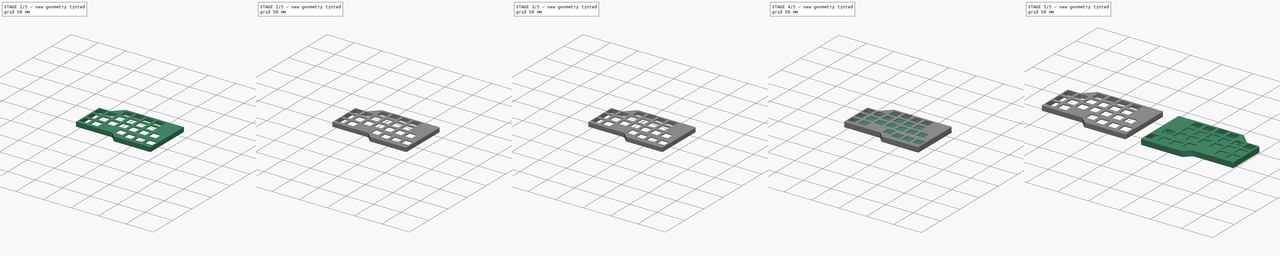
[diagram: build sequence overview — one tinted view per stage of 5, left to right]
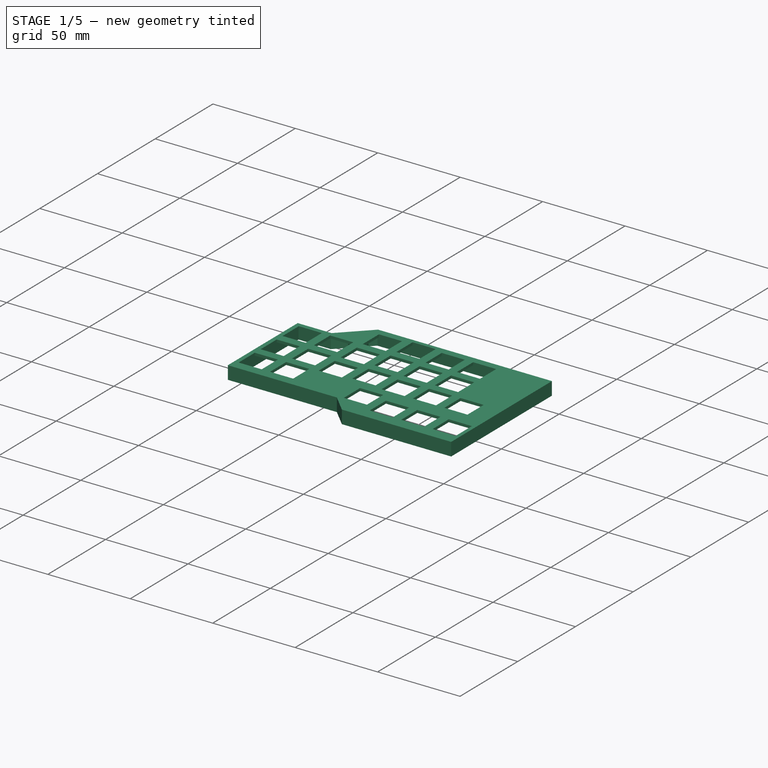
[diagram: stage 1 of 5 — iso view after this stage's code; geometry added in this stage tinted green]
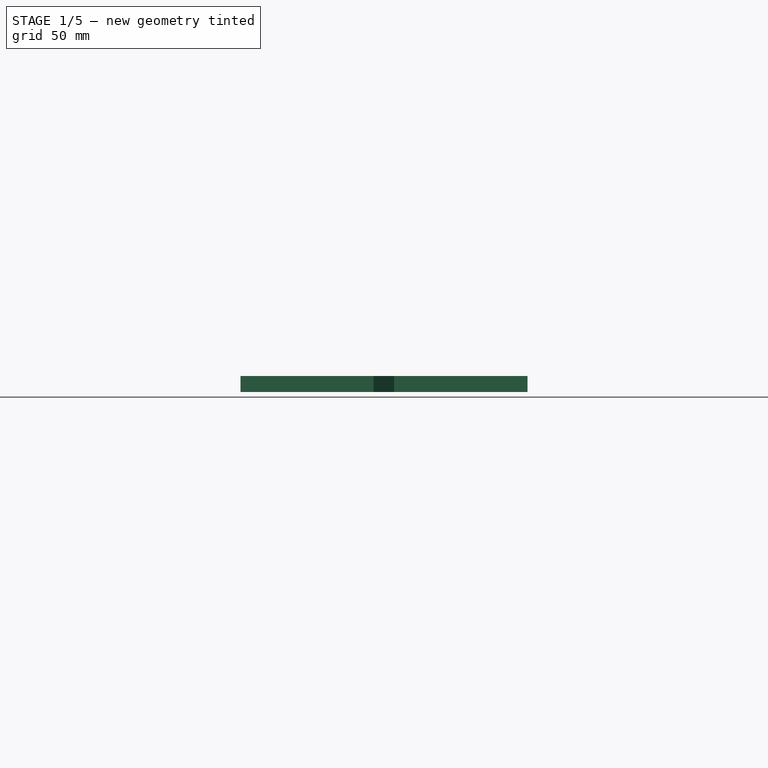
[diagram: stage 1 of 5 — front view after this stage's code; geometry added in this stage tinted green]
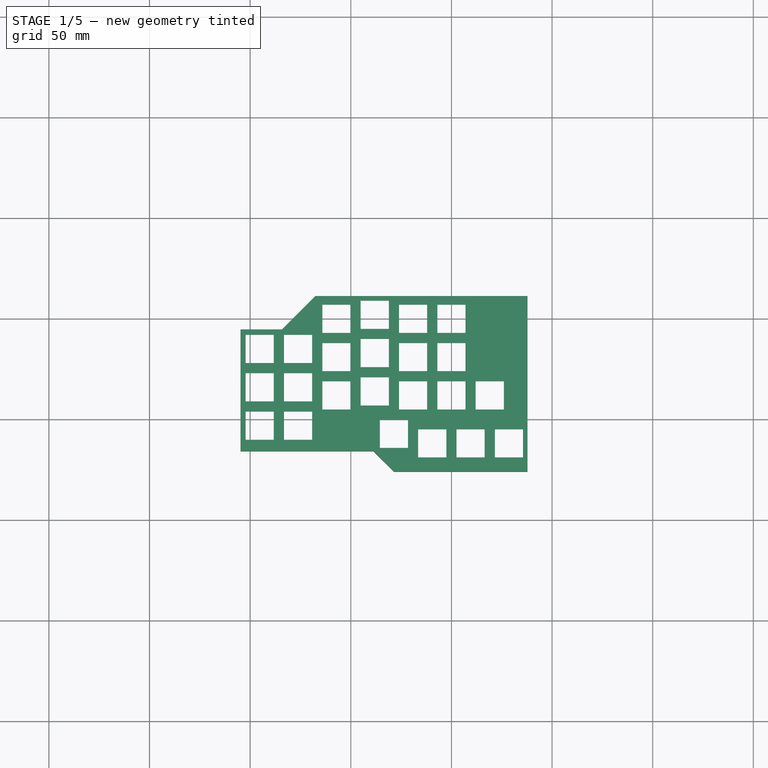
[diagram: stage 1 of 5 — top view after this stage's code; geometry added in this stage tinted green]
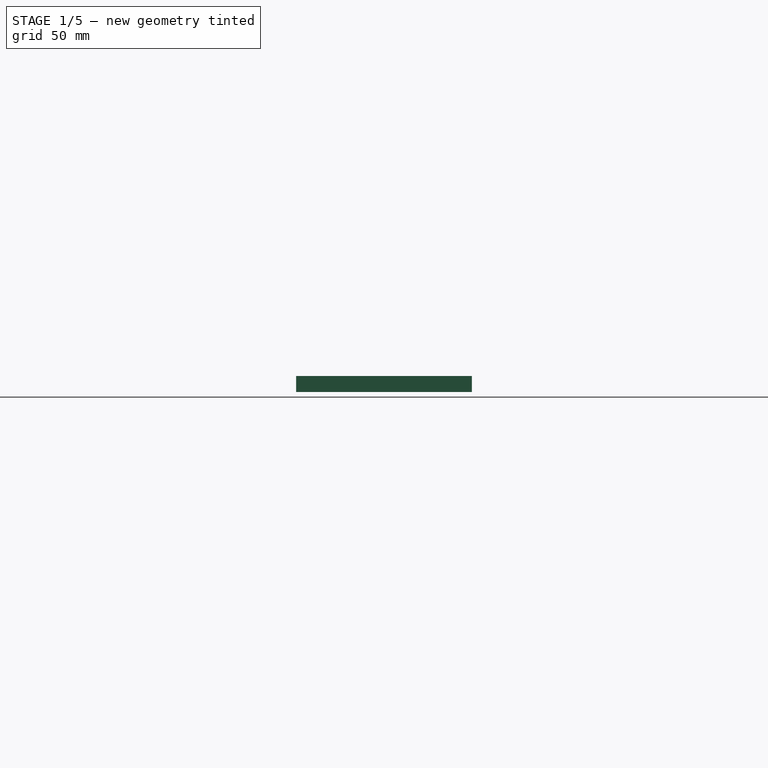
[diagram: stage 1 of 5 — right view after this stage's code; geometry added in this stage tinted green]
FCSTD DOCUMENT  (FreeCAD 0.18R16146 (Git))
Label: ergomin-case
License: All rights reserved
LicenseURL: http://en.wikipedia.org/wiki/All_rights_reserved
objects: Sketcher::SketchObject×16, PartDesign::Pocket×9, PartDesign::Pad×7, PartDesign::Chamfer×6, PartDesign::Body×4, PartDesign::Thickness×2, PartDesign::Fillet×2, PartDesign::FeatureBase×2, Part::Mirroring×2
note: 66 computed .brp shape members not serialized (recipe doc carries the construction recipe); baked Part::Feature solids carry a one-line shape summary decoded from their .brp

FEATURE [Sketcher::SketchObject] Sketch
  MapMode = 5
  Support = -> [XY_Plane]
  expr: Constraints[70] = Sketch.Constraints.tolerance
  expr: Constraints[68] = Sketch.Constraints.tolerance
  expr: Constraints[67] = Sketch.Constraints.tolerance
  expr: Constraints[66] = Sketch.Constraints.tolerance
  expr: Constraints[65] = Sketch.Constraints.tolerance
  expr: Constraints[71] = 4.2mm + Sketch.Constraints.tolerance
  expr: Constraints[63] = Sketch.Constraints.tolerance
  sketch-geometry (25):
    g0: LineSegment [constr] StartX=36 StartY=9.5 StartZ=0 EndX=-66.9 EndY=9.5 EndZ=0
    g1: LineSegment [constr] StartX=-66.9 StartY=9.5 StartZ=0 EndX=-83.5 EndY=-7.1 EndZ=0
    g2: LineSegment [constr] StartX=-83.5 StartY=-7.1 StartZ=0 EndX=-100 EndY=-7.1 EndZ=0
    g3: LineSegment [constr] StartX=-100 StartY=-7.1 StartZ=0 EndX=-103 EndY=-10.1 EndZ=0
    g4: LineSegment [constr] StartX=-103 StartY=-10.1 StartZ=0 EndX=-103 EndY=-61 EndZ=0
    g5: LineSegment [constr] StartX=-103 StartY=-61 StartZ=0 EndX=-100 EndY=-64 EndZ=0
    g6: LineSegment [constr] StartX=-100 StartY=-64 StartZ=0 EndX=-38.5 EndY=-64 EndZ=0
    g7: LineSegment [constr] StartX=-38.5 StartY=-64 StartZ=0 EndX=-32.5 EndY=-70 EndZ=0
    g8: LineSegment [constr] StartX=-32.5 StartY=-70 StartZ=0 EndX=33 EndY=-70 EndZ=0
    g9: LineSegment [constr] StartX=33 StartY=-70 StartZ=0 EndX=36 EndY=-67 EndZ=0
    g10: LineSegment [constr] StartX=36 StartY=-67 StartZ=0 EndX=36 EndY=9.5 EndZ=0
    g11: LineSegment [constr] StartX=-103 StartY=-10.1 StartZ=0 EndX=-103 EndY=-7.1 EndZ=0
    g12: LineSegment [constr] StartX=-103 StartY=-7.1 StartZ=0 EndX=-100 EndY=-7.1 EndZ=0
    g13: LineSegment [constr] StartX=-103 StartY=-61 StartZ=0 EndX=-103 EndY=-64 EndZ=0
    g14: LineSegment [constr] StartX=-103 StartY=-64 StartZ=0 EndX=-100 EndY=-64 EndZ=0
    g15: LineSegment [constr] StartX=33 StartY=-70 StartZ=0 EndX=36 EndY=-70 EndZ=0
    g16: LineSegment [constr] StartX=36 StartY=-70 StartZ=0 EndX=36 EndY=-67 EndZ=0
    g17: LineSegment StartX=-103.2 StartY=-6.9 StartZ=0 EndX=-83.5828 EndY=-6.9 EndZ=0
    g18: LineSegment StartX=-83.5828 StartY=-6.9 StartZ=0 EndX=-66.9828 EndY=9.7 EndZ=0
    g19: LineSegment StartX=-66.9828 StartY=9.7 StartZ=0 EndX=36.2 EndY=9.7 EndZ=0
    g20: LineSegment StartX=36.2 StartY=9.7 StartZ=0 EndX=36.2 EndY=-74.4 EndZ=0
    g21: LineSegment StartX=36.2 StartY=-74.4 StartZ=0 EndX=-27.8172 EndY=-74.4 EndZ=0
    g22: LineSegment StartX=-27.8172 StartY=-74.4 StartZ=0 EndX=-38.0172 EndY=-64.2 EndZ=0
    g23: LineSegment StartX=-38.0172 StartY=-64.2 StartZ=0 EndX=-103.2 EndY=-64.2 EndZ=0
    g24: LineSegment StartX=-103.2 StartY=-64.2 StartZ=0 EndX=-103.2 EndY=-6.9 EndZ=0
  constraints (72):
    c: Horizontal(g0)
    c: Coincident(g1,g0)
    c: Distance(g0) = 102.9
    c: Angle(g1,g0) = 2.35619
    c: DistanceX(g1,g0) = 16.6
    c: Coincident(g2,g1)
    c: Horizontal(g2)
    c: Coincident(g3,g2)
    c: Coincident(g4,g3)
    c: Vertical(g4)
    c: Coincident(g5,g4)
    c: Coincident(g6,g5)
    c: Horizontal(g6)
    c: Coincident(g7,g6)
    c: Coincident(g8,g7)
    c: Horizontal(g8)
    c: Coincident(g9,g8)
    c: Coincident(g10,g9)
    c: Coincident(g10,g0)
    c: Vertical(g10)
    c: Parallel(g1,g3)
    c: Parallel(g1,g9)
    c: Parallel(g7,g5)
    c: DistanceX(g3,g2) = 3
    c: Equal(g3,g5)
    c: Equal(g5,g9)
    c: Distance(g2) = 16.5
    c: Distance(g8) = 65.5
    c: Angle(g5,g4) = 2.35619
    c: DistanceX(g6,g7) = 6
    c: Distance(g10) = 76.5
    c: Distance(g-1,g10) = 36
    c: Distance(g-1,g0) = 9.5
    c: Coincident(g11,g4)
    c: Vertical(g11)
    c: Coincident(g12,g11)
    c: Coincident(g12,g2)
    c: Horizontal(g12)
    c: Coincident(g13,g4)
    c: Vertical(g13)
    c: Coincident(g14,g13)
    c: Coincident(g14,g6)
    c: Horizontal(g14)
    c: Coincident(g15,g8)
    c: Horizontal(g15)
    c: Coincident(g16,g15)
    c: Coincident(g16,g10)
    c: Vertical(g16)
    c: Horizontal(g17)
    c: Coincident(g18,g17)
    c: Coincident(g19,g18)
    c: Horizontal(g19)
    c: Coincident(g20,g19)
    c: Vertical(g20)
    c: Coincident(g21,g20)
    c: Horizontal(g21)
    c: Coincident(g22,g21)
    c: Coincident(g23,g22)
    c: Horizontal(g23)
    c: Coincident(g24,g23)
    c: Coincident(g24,g17)
    c: Vertical(g24)
    c: Distance(g11,g24) = 0.2  'tolerance'
    c: Distance(g13,g23) = 0.2
    c: Parallel(g22,g7)
    c: Distance(g7,g22) = 0.2
    c: Distance(g15,g20) = 0.2
    c: Distance(g0,g19) = 0.2
    c: Distance(g11,g17) = 0.2
    c: Parallel(g18,g1)
    c: Distance(g18,g1) = 0.2
    c: Distance(g15,g21) = 4.4
FEATURE [PartDesign::Pad] Pad
  Length = 6.4
  Length2 = 100
  Profile = -> Sketch
  Type = 0
FEATURE [PartDesign::Thickness] Thickness
  Base = -> Pad [Face9]
  BaseFeature = -> Pad
  Join = 1
  Mode = 0
  Value = 1.6
FEATURE [Sketcher::SketchObject] Sketch001
  MapMode = 5
  Placement = pos=(0,0,6.4) rot=(1,0,0;3.14159rad)
  Support = -> [Thickness]
  sketch-geometry (3):
    g0: Circle CenterX=26.5 CenterY=24.1 CenterZ=0 NormalX=0 NormalY=0 NormalZ=1 AngleXU=0 Radius=5
    g1: Circle CenterX=-71 CenterY=1 CenterZ=0 NormalX=0 NormalY=0 NormalZ=1 AngleXU=0 Radius=5
    g2: Circle CenterX=-62 CenterY=60 CenterZ=0 NormalX=0 NormalY=0 NormalZ=1 AngleXU=0 Radius=5
  constraints (9):
    c: Equal(g1,g0)
    c: Equal(g0,g2)
    c: Radius(g1) = 5
    c: DistanceX(g1,g-1) = 71
    c: DistanceY(g-1,g1) = 1
    c: DistanceY(g-1,g0) = 24.1
    c: DistanceX(g-1,g0) = 26.5
    c: DistanceX(g2,g-1) = 62
    c: DistanceY(g-1,g2) = 60
FEATURE [PartDesign::Pad] Pad001
  BaseFeature = -> Thickness
  Length = 3.4
  Length2 = 100
  Profile = -> Sketch001
  Type = 0
FEATURE [Sketcher::SketchObject] Sketch002
  ExternalGeometry = -> [Sketch001]
  MapMode = 5
  Support = -> [XY_Plane]
  sketch-geometry (3):
    g0: Circle CenterX=-71 CenterY=-1 CenterZ=0 NormalX=0 NormalY=0 NormalZ=1 AngleXU=0 Radius=1.7
    g1: Circle CenterX=-62 CenterY=-60 CenterZ=0 NormalX=0 NormalY=0 NormalZ=1 AngleXU=0 Radius=1.7
    g2: Circle CenterX=26.5709 CenterY=-24.1202 CenterZ=0 NormalX=0 NormalY=0 NormalZ=1 AngleXU=0 Radius=1.7
  constraints (5):
    c: Coincident(g0,g-3)
    c: Coincident(g1,g-4)
    c: Equal(g1,g0)
    c: Equal(g0,g2)
    c: Radius(g0) = 1.7
FEATURE [PartDesign::Pocket] Pocket
  BaseFeature = -> Pad001
  Length = 7.4
  Length2 = 100
  Profile = -> Sketch002
  Reversed = true
  Type = 0
FEATURE [Sketcher::SketchObject] Sketch003
  ExternalGeometry = -> [Pocket]
  MapMode = 5
  Placement = pos=(0,0,6.4) rot=(1,0,0;3.14159rad)
  Support = -> [Pocket]
  sketch-geometry (21):
    g0: LineSegment StartX=-58.8246 StartY=60 StartZ=0 EndX=-60.4123 EndY=62.75 EndZ=0
    g1: LineSegment StartX=-60.4123 StartY=62.75 StartZ=0 EndX=-63.5877 EndY=62.75 EndZ=0
    g2: LineSegment StartX=-63.5877 StartY=62.75 StartZ=0 EndX=-65.1754 EndY=60 EndZ=0
    g3: LineSegment StartX=-65.1754 StartY=60 StartZ=0 EndX=-63.5877 EndY=57.25 EndZ=0
    g4: LineSegment StartX=-63.5877 StartY=57.25 StartZ=0 EndX=-60.4123 EndY=57.25 EndZ=0
    g5: LineSegment StartX=-60.4123 StartY=57.25 StartZ=0 EndX=-58.8246 EndY=60 EndZ=0
    g6: Circle [constr] CenterX=-62 CenterY=60 CenterZ=0 NormalX=0 NormalY=0 NormalZ=1 AngleXU=0 Radius=3.17543
    g7: LineSegment StartX=29.6754 StartY=24.1 StartZ=0 EndX=28.0877 EndY=26.85 EndZ=0
    g8: LineSegment StartX=28.0877 StartY=26.85 StartZ=0 EndX=24.9123 EndY=26.85 EndZ=0
    g9: LineSegment StartX=24.9123 StartY=26.85 StartZ=0 EndX=23.3246 EndY=24.1 EndZ=0
    g10: LineSegment StartX=23.3246 StartY=24.1 StartZ=0 EndX=24.9123 EndY=21.35 EndZ=0
    g11: LineSegment StartX=24.9123 StartY=21.35 StartZ=0 EndX=28.0877 EndY=21.35 EndZ=0
    g12: LineSegment StartX=28.0877 StartY=21.35 StartZ=0 EndX=29.6754 EndY=24.1 EndZ=0
    g13: Circle [constr] CenterX=26.5 CenterY=24.1 CenterZ=0 NormalX=0 NormalY=0 NormalZ=1 AngleXU=0 Radius=3.17543
    g14: LineSegment StartX=-67.8246 StartY=1 StartZ=0 EndX=-69.4123 EndY=3.75 EndZ=0
    g15: LineSegment StartX=-69.4123 StartY=3.75 StartZ=0 EndX=-72.5877 EndY=3.75 EndZ=0
    g16: LineSegment StartX=-72.5877 StartY=3.75 StartZ=0 EndX=-74.1754 EndY=1 EndZ=0
    g17: LineSegment StartX=-74.1754 StartY=1 StartZ=0 EndX=-72.5877 EndY=-1.75 EndZ=0
    g18: LineSegment StartX=-72.5877 StartY=-1.75 StartZ=0 EndX=-69.4123 EndY=-1.75 EndZ=0
    g19: LineSegment StartX=-69.4123 StartY=-1.75 StartZ=0 EndX=-67.8246 EndY=1 EndZ=0
    g20: Circle [constr] CenterX=-71 CenterY=1 CenterZ=0 NormalX=0 NormalY=0 NormalZ=1 AngleXU=0 Radius=3.17543
  constraints (48):
    c: Coincident(g0,g1)
    c: Coincident(g1,g2)
    c: Coincident(g2,g3)
    c: Coincident(g3,g4)
    c: Coincident(g4,g5)
    c: Coincident(g5,g0)
    c: Equal(g0, g1-g5) x5
    c: PointOnObject(g0,g6)
    c: PointOnObject(g1,g6)
    c: PointOnObject(g2,g6)
    c: PointOnObject(g3,g6)
    c: PointOnObject(g4,g6)
    c: PointOnObject(g5,g6)
    c: Coincident(g6,g-5)
    c: Horizontal(g1)
    c: Distance(g0,g4) = 5.5
    c: Coincident(g7,g8)
    c: Coincident(g8,g9)
    c: Coincident(g9,g10)
    c: Coincident(g10,g11)
    c: Coincident(g11,g12)
    c: Coincident(g12,g7)
    c: Equal(g7, g8-g12) x5
    c: PointOnObject(g7,g13)
    c: PointOnObject(g8,g13)
    c: PointOnObject(g9,g13)
    c: PointOnObject(g10,g13)
    c: PointOnObject(g11,g13)
    c: PointOnObject(g12,g13)
    c: Coincident(g13,g-3)
    c: Coincident(g14,g15)
    c: Coincident(g15,g16)
    c: Coincident(g16,g17)
    c: Coincident(g17,g18)
    c: Coincident(g18,g19)
    c: Coincident(g19,g14)
    c: Equal(g14, g15-g19) x5
    c: PointOnObject(g14,g20)
    c: PointOnObject(g15,g20)
    c: PointOnObject(g16,g20)
    c: PointOnObject(g17,g20)
    c: PointOnObject(g18,g20)
    c: PointOnObject(g19,g20)
    c: Coincident(g20,g-4)
    c: Equal(g15,g4)
    c: Equal(g8,g4)
    c: Horizontal(g8)
    c: Horizontal(g15)
FEATURE [PartDesign::Pocket] Pocket001
  BaseFeature = -> Pocket
  Length = 2.6
  Length2 = 100
  Profile = -> Sketch003
  Reversed = true
  Type = 0
FEATURE [Sketcher::SketchObject] Sketch004
  MapMode = 5
  Placement = pos=(0,0,8) rot=(0,0,1;0rad)
  Support = -> [Pocket001]
  sketch-geometry (184):
    g0: LineSegment StartX=-7 StartY=-7 StartZ=0 EndX=7 EndY=-7 EndZ=0
    g1: LineSegment StartX=7 StartY=-7 StartZ=0 EndX=7 EndY=7 EndZ=0
    g2: LineSegment StartX=7 StartY=7 StartZ=0 EndX=-7 EndY=7 EndZ=0
    g3: LineSegment StartX=-7 StartY=7 StartZ=0 EndX=-7 EndY=-7 EndZ=0
    g4: LineSegment [constr] StartX=-7 StartY=-7 StartZ=0 EndX=7 EndY=7 EndZ=0
    g5: LineSegment [constr] StartX=-7 StartY=7 StartZ=0 EndX=7 EndY=-7 EndZ=0
    g6: GeomPoint X=0 Y=0 Z=0
    g7: LineSegment StartX=-7 StartY=-26.05 StartZ=0 EndX=7 EndY=-26.05 EndZ=0
    g8: LineSegment StartX=7 StartY=-26.05 StartZ=0 EndX=7 EndY=-12.05 EndZ=0
    g9: LineSegment StartX=7 StartY=-12.05 StartZ=0 EndX=-7 EndY=-12.05 EndZ=0
    g10: LineSegment StartX=-7 StartY=-12.05 StartZ=0 EndX=-7 EndY=-26.05 EndZ=0
    g11: LineSegment [constr] StartX=-7 StartY=-26.05 StartZ=0 EndX=7 EndY=-12.05 EndZ=0
    g12: LineSegment [constr] StartX=-7 StartY=-12.05 StartZ=0 EndX=7 EndY=-26.05 EndZ=0
    g13: GeomPoint X=0 Y=-19.05 Z=0
    g14: LineSegment StartX=-7 StartY=-45.1 StartZ=0 EndX=7 EndY=-45.1 EndZ=0
    g15: LineSegment StartX=7 StartY=-45.1 StartZ=0 EndX=7 EndY=-31.1 EndZ=0
    g16: LineSegment StartX=7 StartY=-31.1 StartZ=0 EndX=-7 EndY=-31.1 EndZ=0
    g17: LineSegment StartX=-7 StartY=-31.1 StartZ=0 EndX=-7 EndY=-45.1 EndZ=0
    g18: LineSegment [constr] StartX=-7 StartY=-45.1 StartZ=0 EndX=7 EndY=-31.1 EndZ=0
    g19: LineSegment [constr] StartX=-7 StartY=-31.1 StartZ=0 EndX=7 EndY=-45.1 EndZ=0
    g20: GeomPoint X=0 Y=-38.1 Z=0
    g21: LineSegment StartX=-35.575 StartY=-64.15 StartZ=0 EndX=-21.575 EndY=-64.15 EndZ=0
    g22: LineSegment StartX=-21.575 StartY=-64.15 StartZ=0 EndX=-21.575 EndY=-50.15 EndZ=0
    g23: LineSegment StartX=-21.575 StartY=-50.15 StartZ=0 EndX=-35.575 EndY=-50.15 EndZ=0
    g24: LineSegment StartX=-35.575 StartY=-50.15 StartZ=0 EndX=-35.575 EndY=-64.15 EndZ=0
    g25: LineSegment [constr] StartX=-35.575 StartY=-64.15 StartZ=0 EndX=-21.575 EndY=-50.15 EndZ=0
    g26: LineSegment [constr] StartX=-35.575 StartY=-50.15 StartZ=0 EndX=-21.575 EndY=-64.15 EndZ=0
    g27: GeomPoint X=-28.575 Y=-57.15 Z=0
    g28: LineSegment [constr] StartX=0 StartY=0 StartZ=0 EndX=0 EndY=-19.05 EndZ=0
    g29: LineSegment [constr] StartX=0 StartY=-38.1 StartZ=0 EndX=0 EndY=-19.05 EndZ=0
    g30: LineSegment StartX=-26.05 StartY=-7 StartZ=0 EndX=-12.05 EndY=-7 EndZ=0
    g31: LineSegment StartX=-12.05 StartY=-7 StartZ=0 EndX=-12.05 EndY=7 EndZ=0
    g32: LineSegment StartX=-12.05 StartY=7 StartZ=0 EndX=-26.05 EndY=7 EndZ=0
    g33: LineSegment StartX=-26.05 StartY=7 StartZ=0 EndX=-26.05 EndY=-7 EndZ=0
    g34: LineSegment [constr] StartX=-26.05 StartY=-7 StartZ=0 EndX=-12.05 EndY=7 EndZ=0
    g35: LineSegment [constr] StartX=-26.05 StartY=7 StartZ=0 EndX=-12.05 EndY=-7 EndZ=0
    g36: GeomPoint X=-19.05 Y=0 Z=0
    g37: LineSegment StartX=-26.05 StartY=-26.05 StartZ=0 EndX=-12.05 EndY=-26.05 EndZ=0
    g38: LineSegment StartX=-12.05 StartY=-26.05 StartZ=0 EndX=-12.05 EndY=-12.05 EndZ=0
    g39: LineSegment StartX=-12.05 StartY=-12.05 StartZ=0 EndX=-26.05 EndY=-12.05 EndZ=0
    g40: LineSegment StartX=-26.05 StartY=-12.05 StartZ=0 EndX=-26.05 EndY=-26.05 EndZ=0
    g41: LineSegment [constr] StartX=-26.05 StartY=-26.05 StartZ=0 EndX=-12.05 EndY=-12.05 EndZ=0
    g42: LineSegment [constr] StartX=-26.05 StartY=-12.05 StartZ=0 EndX=-12.05 EndY=-26.05 EndZ=0
    g43: GeomPoint X=-19.05 Y=-19.05 Z=0
    g44: LineSegment StartX=-26.05 StartY=-45.1 StartZ=0 EndX=-12.05 EndY=-45.1 EndZ=0
    g45: LineSegment StartX=-12.05 StartY=-45.1 StartZ=0 EndX=-12.05 EndY=-31.1 EndZ=0
    g46: LineSegment StartX=-12.05 StartY=-31.1 StartZ=0 EndX=-26.05 EndY=-31.1 EndZ=0
    g47: LineSegment StartX=-26.05 StartY=-31.1 StartZ=0 EndX=-26.05 EndY=-45.1 EndZ=0
    g48: LineSegment [constr] StartX=-26.05 StartY=-45.1 StartZ=0 EndX=-12.05 EndY=-31.1 EndZ=0
    g49: LineSegment [constr] StartX=-26.05 StartY=-31.1 StartZ=0 EndX=-12.05 EndY=-45.1 EndZ=0
    g50: GeomPoint X=-19.05 Y=-38.1 Z=0
    g51: LineSegment [constr] StartX=-19.05 StartY=0 StartZ=0 EndX=-19.05 EndY=-19.05 EndZ=0
    g52: LineSegment [constr] StartX=-19.05 StartY=-38.1 StartZ=0 EndX=-19.05 EndY=-19.05 EndZ=0
    g53: LineSegment StartX=-64.15 StartY=-7 StartZ=0 EndX=-50.15 EndY=-7 EndZ=0
    g54: LineSegment StartX=-50.15 StartY=-7 StartZ=0 EndX=-50.15 EndY=7 EndZ=0
    g55: LineSegment StartX=-50.15 StartY=7 StartZ=0 EndX=-64.15 EndY=7 EndZ=0
    g56: LineSegment StartX=-64.15 StartY=7 StartZ=0 EndX=-64.15 EndY=-7 EndZ=0
    g57: LineSegment [constr] StartX=-64.15 StartY=-7 StartZ=0 EndX=-50.15 EndY=7 EndZ=0
    g58: LineSegment [constr] StartX=-64.15 StartY=7 StartZ=0 EndX=-50.15 EndY=-7 EndZ=0
    g59: GeomPoint X=-57.15 Y=0 Z=0
    g60: LineSegment StartX=-64.15 StartY=-26.05 StartZ=0 EndX=-50.15 EndY=-26.05 EndZ=0
    g61: LineSegment StartX=-50.15 StartY=-26.05 StartZ=0 EndX=-50.15 EndY=-12.05 EndZ=0
    g62: LineSegment StartX=-50.15 StartY=-12.05 StartZ=0 EndX=-64.15 EndY=-12.05 EndZ=0
    g63: LineSegment StartX=-64.15 StartY=-12.05 StartZ=0 EndX=-64.15 EndY=-26.05 EndZ=0
    g64: LineSegment [constr] StartX=-64.15 StartY=-26.05 StartZ=0 EndX=-50.15 EndY=-12.05 EndZ=0
    g65: LineSegment [constr] StartX=-64.15 StartY=-12.05 StartZ=0 EndX=-50.15 EndY=-26.05 EndZ=0
    g66: GeomPoint X=-57.15 Y=-19.05 Z=0
    g67: LineSegment StartX=-64.15 StartY=-45.1 StartZ=0 EndX=-50.15 EndY=-45.1 EndZ=0
    g68: LineSegment StartX=-50.15 StartY=-45.1 StartZ=0 EndX=-50.15 EndY=-31.1 EndZ=0
    g69: LineSegment StartX=-50.15 StartY=-31.1 StartZ=0 EndX=-64.15 EndY=-31.1 EndZ=0
    g70: LineSegment StartX=-64.15 StartY=-31.1 StartZ=0 EndX=-64.15 EndY=-45.1 EndZ=0
    g71: LineSegment [constr] StartX=-64.15 StartY=-45.1 StartZ=0 EndX=-50.15 EndY=-31.1 EndZ=0
    g72: LineSegment [constr] StartX=-64.15 StartY=-31.1 StartZ=0 EndX=-50.15 EndY=-45.1 EndZ=0
    g73: GeomPoint X=-57.15 Y=-38.1 Z=0
    g74: LineSegment [constr] StartX=-57.15 StartY=0 StartZ=0 EndX=-57.15 EndY=-19.05 EndZ=0
    g75: LineSegment [constr] StartX=-57.15 StartY=-38.1 StartZ=0 EndX=-57.15 EndY=-19.05 EndZ=0
    g76: LineSegment StartX=-83.2 StartY=-22 StartZ=0 EndX=-69.2 EndY=-22 EndZ=0
    g77: LineSegment StartX=-69.2 StartY=-22 StartZ=0 EndX=-69.2 EndY=-8 EndZ=0
    g78: LineSegment StartX=-69.2 StartY=-8 StartZ=0 EndX=-83.2 EndY=-8 EndZ=0
    g79: LineSegment StartX=-83.2 StartY=-8 StartZ=0 EndX=-83.2 EndY=-22 EndZ=0
    g80: LineSegment [constr] StartX=-83.2 StartY=-22 StartZ=0 EndX=-69.2 EndY=-8 EndZ=0
    g81: LineSegment [constr] StartX=-83.2 StartY=-8 StartZ=0 EndX=-69.2 EndY=-22 EndZ=0
    g82: GeomPoint X=-76.2 Y=-15 Z=0
    g83: LineSegment StartX=-83.2 StartY=-41.05 StartZ=0 EndX=-69.2 EndY=-41.05 EndZ=0
    g84: LineSegment StartX=-69.2 StartY=-41.05 StartZ=0 EndX=-69.2 EndY=-27.05 EndZ=0
    g85: LineSegment StartX=-69.2 StartY=-27.05 StartZ=0 EndX=-83.2 EndY=-27.05 EndZ=0
    g86: LineSegment StartX=-83.2 StartY=-27.05 StartZ=0 EndX=-83.2 EndY=-41.05 EndZ=0
    g87: LineSegment [constr] StartX=-83.2 StartY=-41.05 StartZ=0 EndX=-69.2 EndY=-27.05 EndZ=0
    g88: LineSegment [constr] StartX=-83.2 StartY=-27.05 StartZ=0 EndX=-69.2 EndY=-41.05 EndZ=0
    g89: GeomPoint X=-76.2 Y=-34.05 Z=0
    g90: LineSegment StartX=-83.2 StartY=-60.1 StartZ=0 EndX=-69.2 EndY=-60.1 EndZ=0
    g91: LineSegment StartX=-69.2 StartY=-60.1 StartZ=0 EndX=-69.2 EndY=-46.1 EndZ=0
    g92: LineSegment StartX=-69.2 StartY=-46.1 StartZ=0 EndX=-83.2 EndY=-46.1 EndZ=0
    g93: LineSegment StartX=-83.2 StartY=-46.1 StartZ=0 EndX=-83.2 EndY=-60.1 EndZ=0
    g94: LineSegment [constr] StartX=-83.2 StartY=-60.1 StartZ=0 EndX=-69.2 EndY=-46.1 EndZ=0
    g95: LineSegment [constr] StartX=-83.2 StartY=-46.1 StartZ=0 EndX=-69.2 EndY=-60.1 EndZ=0
    g96: GeomPoint X=-76.2 Y=-53.1 Z=0
    g97: LineSegment [constr] StartX=-76.2 StartY=-15 StartZ=0 EndX=-76.2 EndY=-34.05 EndZ=0
    g98: LineSegment [constr] StartX=-76.2 StartY=-53.1 StartZ=0 EndX=-76.2 EndY=-34.05 EndZ=0
    g99: LineSegment StartX=-102.25 StartY=-22 StartZ=0 EndX=-88.25 EndY=-22 EndZ=0
    g100: LineSegment StartX=-88.25 StartY=-22 StartZ=0 EndX=-88.25 EndY=-8 EndZ=0
    g101: LineSegment StartX=-88.25 StartY=-8 StartZ=0 EndX=-102.25 EndY=-8 EndZ=0
    g102: LineSegment StartX=-102.25 StartY=-8 StartZ=0 EndX=-102.25 EndY=-22 EndZ=0
    g103: LineSegment [constr] StartX=-102.25 StartY=-22 StartZ=0 EndX=-88.25 EndY=-8 EndZ=0
    g104: LineSegment [constr] StartX=-102.25 StartY=-8 StartZ=0 EndX=-88.25 EndY=-22 EndZ=0
    g105: GeomPoint X=-95.25 Y=-15 Z=0
    g106: LineSegment StartX=-102.25 StartY=-41.05 StartZ=0 EndX=-88.25 EndY=-41.05 EndZ=0
    g107: LineSegment StartX=-88.25 StartY=-41.05 StartZ=0 EndX=-88.25 EndY=-27.05 EndZ=0
    g108: LineSegment StartX=-88.25 StartY=-27.05 StartZ=0 EndX=-102.25 EndY=-27.05 EndZ=0
    g109: LineSegment StartX=-102.25 StartY=-27.05 StartZ=0 EndX=-102.25 EndY=-41.05 EndZ=0
    g110: LineSegment [constr] StartX=-102.25 StartY=-41.05 StartZ=0 EndX=-88.25 EndY=-27.05 EndZ=0
    g111: LineSegment [constr] StartX=-102.25 StartY=-27.05 StartZ=0 EndX=-88.25 EndY=-41.05 EndZ=0
    g112: GeomPoint X=-95.25 Y=-34.05 Z=0
    g113: LineSegment StartX=-102.25 StartY=-60.1 StartZ=0 EndX=-88.25 EndY=-60.1 EndZ=0
    g114: LineSegment StartX=-88.25 StartY=-60.1 StartZ=0 EndX=-88.25 EndY=-46.1 EndZ=0
    g115: LineSegment StartX=-88.25 StartY=-46.1 StartZ=0 EndX=-102.25 EndY=-46.1 EndZ=0
    g116: LineSegment StartX=-102.25 StartY=-46.1 StartZ=0 EndX=-102.25 EndY=-60.1 EndZ=0
    g117: LineSegment [constr] StartX=-102.25 StartY=-60.1 StartZ=0 EndX=-88.25 EndY=-46.1 EndZ=0
    g118: LineSegment [constr] StartX=-102.25 StartY=-46.1 StartZ=0 EndX=-88.25 EndY=-60.1 EndZ=0
    g119: GeomPoint X=-95.25 Y=-53.1 Z=0
    g120: LineSegment [constr] StartX=-95.25 StartY=-15 StartZ=0 EndX=-95.25 EndY=-34.05 EndZ=0
    g121: LineSegment [constr] StartX=-95.25 StartY=-53.1 StartZ=0 EndX=-95.25 EndY=-34.05 EndZ=0
    g122: LineSegment [constr] StartX=-19.05 StartY=0 StartZ=0 EndX=0 EndY=0 EndZ=0
    g123: LineSegment [constr] StartX=-95.25 StartY=-15 StartZ=0 EndX=-76.2 EndY=-15 EndZ=0
    g124: LineSegment StartX=-45.1 StartY=-5 StartZ=0 EndX=-31.1 EndY=-5 EndZ=0
    g125: LineSegment StartX=-31.1 StartY=-5 StartZ=0 EndX=-31.1 EndY=9 EndZ=0
    g126: LineSegment StartX=-31.1 StartY=9 StartZ=0 EndX=-45.1 EndY=9 EndZ=0
    g127: LineSegment StartX=-45.1 StartY=9 StartZ=0 EndX=-45.1 EndY=-5 EndZ=0
    g128: LineSegment [constr] StartX=-45.1 StartY=-5 StartZ=0 EndX=-31.1 EndY=9 EndZ=0
    g129: LineSegment [constr] StartX=-45.1 StartY=9 StartZ=0 EndX=-31.1 EndY=-5 EndZ=0
    g130: GeomPoint X=-38.1 Y=2 Z=0
    g131: LineSegment StartX=-45.1 StartY=-24.05 StartZ=0 EndX=-31.1 EndY=-24.05 EndZ=0
    g132: LineSegment StartX=-31.1 StartY=-24.05 StartZ=0 EndX=-31.1 EndY=-10.05 EndZ=0
    g133: LineSegment StartX=-31.1 StartY=-10.05 StartZ=0 EndX=-45.1 EndY=-10.05 EndZ=0
    g134: LineSegment StartX=-45.1 StartY=-10.05 StartZ=0 EndX=-45.1 EndY=-24.05 EndZ=0
    g135: LineSegment [constr] StartX=-45.1 StartY=-24.05 StartZ=0 EndX=-31.1 EndY=-10.05 EndZ=0
    g136: LineSegment [constr] StartX=-45.1 StartY=-10.05 StartZ=0 EndX=-31.1 EndY=-24.05 EndZ=0
    g137: GeomPoint X=-38.1 Y=-17.05 Z=0
    g138: LineSegment StartX=-45.1 StartY=-43.1 StartZ=0 EndX=-31.1 EndY=-43.1 EndZ=0
    g139: LineSegment StartX=-31.1 StartY=-43.1 StartZ=0 EndX=-31.1 EndY=-29.1 EndZ=0
    g140: LineSegment StartX=-31.1 StartY=-29.1 StartZ=0 EndX=-45.1 EndY=-29.1 EndZ=0
    g141: LineSegment StartX=-45.1 StartY=-29.1 StartZ=0 EndX=-45.1 EndY=-43.1 EndZ=0
    g142: LineSegment [constr] StartX=-45.1 StartY=-43.1 StartZ=0 EndX=-31.1 EndY=-29.1 EndZ=0
    g143: LineSegment [constr] StartX=-45.1 StartY=-29.1 StartZ=0 EndX=-31.1 EndY=-43.1 EndZ=0
    g144: GeomPoint X=-38.1 Y=-36.1 Z=0
    g145: LineSegment [constr] StartX=-38.1 StartY=2 StartZ=0 EndX=-38.1 EndY=-17.05 EndZ=0
    g146: LineSegment [constr] StartX=-38.1 StartY=-36.1 StartZ=0 EndX=-38.1 EndY=-17.05 EndZ=0
    g147: LineSegment [constr] StartX=-57.15 StartY=0 StartZ=0 EndX=-38.1 EndY=0 EndZ=0
    g148: LineSegment [constr] StartX=-38.1 StartY=0 StartZ=0 EndX=-19.05 EndY=0 EndZ=0
    g149: LineSegment [constr] StartX=-76.2 StartY=-15 StartZ=0 EndX=-57.15 EndY=-15 EndZ=0
    g150: LineSegment StartX=-16.525 StartY=-68.913 StartZ=0 EndX=-2.525 EndY=-68.913 EndZ=0
    g151: LineSegment StartX=-2.525 StartY=-68.913 StartZ=0 EndX=-2.525 EndY=-54.913 EndZ=0
    g152: LineSegment StartX=-2.525 StartY=-54.913 StartZ=0 EndX=-16.525 EndY=-54.913 EndZ=0
    g153: LineSegment StartX=-16.525 StartY=-54.913 StartZ=0 EndX=-16.525 EndY=-68.913 EndZ=0
    g154: LineSegment [constr] StartX=-16.525 StartY=-68.913 StartZ=0 EndX=-2.525 EndY=-54.913 EndZ=0
    g155: LineSegment [constr] StartX=-16.525 StartY=-54.913 StartZ=0 EndX=-2.525 EndY=-68.913 EndZ=0
    g156: GeomPoint X=-9.525 Y=-61.913 Z=0
    g157: LineSegment StartX=2.525 StartY=-68.913 StartZ=0 EndX=16.525 EndY=-68.913 EndZ=0
    g158: LineSegment StartX=16.525 StartY=-68.913 StartZ=0 EndX=16.525 EndY=-54.913 EndZ=0
    g159: LineSegment StartX=16.525 StartY=-54.913 StartZ=0 EndX=2.525 EndY=-54.913 EndZ=0
    g160: LineSegment StartX=2.525 StartY=-54.913 StartZ=0 EndX=2.525 EndY=-68.913 EndZ=0
    g161: LineSegment [constr] StartX=2.525 StartY=-68.913 StartZ=0 EndX=16.525 EndY=-54.913 EndZ=0
    g162: LineSegment [constr] StartX=2.525 StartY=-54.913 StartZ=0 EndX=16.525 EndY=-68.913 EndZ=0
    g163: GeomPoint X=9.525 Y=-61.913 Z=0
    g164: LineSegment StartX=21.575 StartY=-68.913 StartZ=0 EndX=35.575 EndY=-68.913 EndZ=0
    g165: LineSegment StartX=35.575 StartY=-68.913 StartZ=0 EndX=35.575 EndY=-54.913 EndZ=0
    g166: LineSegment StartX=35.575 StartY=-54.913 StartZ=0 EndX=21.575 EndY=-54.913 EndZ=0
    g167: LineSegment StartX=21.575 StartY=-54.913 StartZ=0 EndX=21.575 EndY=-68.913 EndZ=0
    g168: LineSegment [constr] StartX=21.575 StartY=-68.913 StartZ=0 EndX=35.575 EndY=-54.913 EndZ=0
    g169: LineSegment [constr] StartX=21.575 StartY=-54.913 StartZ=0 EndX=35.575 EndY=-68.913 EndZ=0
    g170: GeomPoint X=28.575 Y=-61.913 Z=0
    g171: LineSegment StartX=12.05 StartY=-45.1 StartZ=0 EndX=26.05 EndY=-45.1 EndZ=0
    g172: LineSegment StartX=26.05 StartY=-45.1 StartZ=0 EndX=26.05 EndY=-31.1 EndZ=0
    g173: LineSegment StartX=26.05 StartY=-31.1 StartZ=0 EndX=12.05 EndY=-31.1 EndZ=0
    g174: LineSegment StartX=12.05 StartY=-31.1 StartZ=0 EndX=12.05 EndY=-45.1 EndZ=0
    g175: LineSegment [constr] StartX=12.05 StartY=-45.1 StartZ=0 EndX=26.05 EndY=-31.1 EndZ=0
    g176: LineSegment [constr] StartX=12.05 StartY=-31.1 StartZ=0 EndX=26.05 EndY=-45.1 EndZ=0
    g177: GeomPoint X=19.05 Y=-38.1 Z=0
    g178: LineSegment [constr] StartX=0 StartY=-38.1 StartZ=0 EndX=19.05 EndY=-38.1 EndZ=0
    g179: LineSegment [constr] StartX=-9.525 StartY=-61.913 StartZ=0 EndX=9.525 EndY=-61.913 EndZ=0
    g180: LineSegment [constr] StartX=9.525 StartY=-61.913 StartZ=0 EndX=28.575 EndY=-61.913 EndZ=0
    g181: LineSegment [constr] StartX=-28.575 StartY=-57.15 StartZ=0 EndX=-9.525 EndY=-57.15 EndZ=0
    g182: LineSegment [constr] StartX=-19.05 StartY=-38.1 StartZ=0 EndX=-19.05 EndY=-57.15 EndZ=0
    g183: LineSegment [constr] StartX=-9.525 StartY=-61.913 StartZ=0 EndX=-9.525 EndY=-57.15 EndZ=0
  constraints (465):
    c: Coincident(g0,g1)
    c: Coincident(g1,g2)
    c: Coincident(g2,g3)
    c: Coincident(g3,g0)
    c: Horizontal(g0)
    c: Horizontal(g2)
    c: Vertical(g1)
    c: Vertical(g3)
    c: Coincident(g4,g0)
    c: Coincident(g4,g1)
    c: Coincident(g5,g2)
    c: Coincident(g5,g0)
    c: PointOnObject(g6,g4)
    c: PointOnObject(g6,g5)
    c: Equal(g3,g2)
    c: Distance(g2) = 14
    c: Coincident(g7,g8)
    c: Coincident(g8,g9)
    c: Coincident(g9,g10)
    c: Coincident(g10,g7)
    c: Horizontal(g7)
    c: Horizontal(g9)
    c: Vertical(g8)
    c: Vertical(g10)
    c: Coincident(g11,g7)
    c: Coincident(g11,g8)
    c: Coincident(g12,g9)
    c: Coincident(g12,g7)
    c: PointOnObject(g13,g11)
    c: PointOnObject(g13,g12)
    c: Equal(g10,g9)
    c: Equal(g2,g9) = 14
    c: Coincident(g14,g15)
    c: Coincident(g15,g16)
    c: Coincident(g16,g17)
    c: Coincident(g17,g14)
    c: Horizontal(g14)
    c: Horizontal(g16)
    c: Vertical(g15)
    c: Vertical(g17)
    c: Coincident(g18,g14)
    c: Coincident(g18,g15)
    c: Coincident(g19,g16)
    c: Coincident(g19,g14)
    c: PointOnObject(g20,g18)
    c: PointOnObject(g20,g19)
    c: Equal(g17,g16)
    c: Equal(g2,g16) = 14
    c: Coincident(g21,g22)
    c: Coincident(g22,g23)
    c: Coincident(g23,g24)
    c: Coincident(g24,g21)
    c: Horizontal(g21)
    c: Horizontal(g23)
    c: Vertical(g22)
    c: Vertical(g24)
    c: Coincident(g25,g21)
    c: Coincident(g25,g22)
    c: Coincident(g26,g23)
    c: Coincident(g26,g21)
    c: PointOnObject(g27,g25)
    c: PointOnObject(g27,g26)
    c: Equal(g24,g23)
    c: Equal(g16,g23) = 14
    c: Coincident(g6,g-1)
    c: Coincident(g28,g6)
    c: Coincident(g28,g13)
    c: Vertical(g28)
    c: Coincident(g29,g20)
    c: Coincident(g29,g13)
    c: Vertical(g29)
    c: Distance(g28) = 19.05
    c: Equal(g28,g29)
    c: Coincident(g30,g31)
    c: Coincident(g31,g32)
    c: Coincident(g32,g33)
    c: Coincident(g33,g30)
    c: Horizontal(g30)
    c: Horizontal(g32)
    c: Vertical(g31)
    c: Vertical(g33)
    c: Coincident(g34,g30)
    c: Coincident(g34,g31)
    c: Coincident(g35,g32)
    c: Coincident(g35,g30)
    c: PointOnObject(g36,g34)
    c: PointOnObject(g36,g35)
    c: Equal(g33,g32)
    c: Equal(g2,g32) = 14
    c: Coincident(g37,g38)
    c: Coincident(g38,g39)
    c: Coincident(g39,g40)
    c: Coincident(g40,g37)
    c: Horizontal(g37)
    c: Horizontal(g39)
    c: Vertical(g38)
    c: Vertical(g40)
    c: Coincident(g41,g37)
    c: Coincident(g41,g38)
    c: Coincident(g42,g39)
    c: Coincident(g42,g37)
    c: PointOnObject(g43,g41)
    c: PointOnObject(g43,g42)
    c: Equal(g40,g39)
    c: Equal(g32,g39) = 14
    c: Coincident(g44,g45)
    c: Coincident(g45,g46)
    c: Coincident(g46,g47)
    c: Coincident(g47,g44)
    c: Horizontal(g44)
    c: Horizontal(g46)
    c: Vertical(g45)
    c: Vertical(g47)
    c: Coincident(g48,g44)
    c: Coincident(g48,g45)
    c: Coincident(g49,g46)
    c: Coincident(g49,g44)
    c: PointOnObject(g50,g48)
    c: PointOnObject(g50,g49)
    c: Equal(g47,g46)
    c: Equal(g32,g46) = 14
    c: Coincident(g51,g36)
    c: Coincident(g51,g43)
    c: Vertical(g51)
    c: Coincident(g52,g50)
    c: Coincident(g52,g43)
    c: Vertical(g52)
    c: Equal(g28,g51) = 19.05
    c: Equal(g51,g52)
    c: Coincident(g53,g54)
    c: Coincident(g54,g55)
    c: Coincident(g55,g56)
    c: Coincident(g56,g53)
    c: Horizontal(g53)
    c: Horizontal(g55)
    c: Vertical(g54)
    c: Vertical(g56)
    c: Coincident(g57,g53)
    c: Coincident(g57,g54)
    c: Coincident(g58,g55)
    c: Coincident(g58,g53)
    c: PointOnObject(g59,g57)
    c: PointOnObject(g59,g58)
    c: Equal(g56,g55)
    c: Coincident(g60,g61)
    c: Coincident(g61,g62)
    c: Coincident(g62,g63)
    c: Coincident(g63,g60)
    c: Horizontal(g60)
    c: Horizontal(g62)
    c: Vertical(g61)
    c: Vertical(g63)
    c: Coincident(g64,g60)
    c: Coincident(g64,g61)
    c: Coincident(g65,g62)
    c: Coincident(g65,g60)
    c: PointOnObject(g66,g64)
    c: PointOnObject(g66,g65)
    c: Equal(g63,g62)
    c: Equal(g55,g62) = 14
    c: Coincident(g67,g68)
    c: Coincident(g68,g69)
    c: Coincident(g69,g70)
    c: Coincident(g70,g67)
    c: Horizontal(g67)
    c: Horizontal(g69)
    c: Vertical(g68)
    c: Vertical(g70)
    c: Coincident(g71,g67)
    c: Coincident(g71,g68)
    c: Coincident(g72,g69)
    c: Coincident(g72,g67)
    c: PointOnObject(g73,g71)
    c: PointOnObject(g73,g72)
    c: Equal(g70,g69)
    c: Equal(g55,g69) = 14
    c: Coincident(g74,g59)
    c: Coincident(g74,g66)
    c: Vertical(g74)
    c: Coincident(g75,g73)
    c: Coincident(g75,g66)
    c: Vertical(g75)
    c: Equal(g74,g75)
    c: Coincident(g76,g77)
    c: Coincident(g77,g78)
    c: Coincident(g78,g79)
    c: Coincident(g79,g76)
    c: Horizontal(g76)
    c: Horizontal(g78)
    c: Vertical(g77)
    c: Vertical(g79)
    c: Coincident(g80,g76)
    c: Coincident(g80,g77)
    c: Coincident(g81,g78)
    c: Coincident(g81,g76)
    c: PointOnObject(g82,g80)
    c: PointOnObject(g82,g81)
    c: Coincident(g83,g84)
    c: Coincident(g84,g85)
    c: Coincident(g85,g86)
    c: Coincident(g86,g83)
    c: Horizontal(g83)
    c: Horizontal(g85)
    c: Vertical(g84)
    c: Vertical(g86)
    c: Coincident(g87,g83)
    c: Coincident(g87,g84)
    c: Coincident(g88,g85)
    c: Coincident(g88,g83)
    c: PointOnObject(g89,g87)
    c: PointOnObject(g89,g88)
    c: Equal(g86,g85)
    c: Coincident(g90,g91)
    c: Coincident(g91,g92)
    c: Coincident(g92,g93)
    c: Coincident(g93,g90)
    c: Horizontal(g90)
    c: Horizontal(g92)
    c: Vertical(g91)
    c: Vertical(g93)
    c: Coincident(g94,g90)
    c: Coincident(g94,g91)
    c: Coincident(g95,g92)
    c: Coincident(g95,g90)
    c: PointOnObject(g96,g94)
    c: PointOnObject(g96,g95)
    c: Equal(g93,g92)
    c: Coincident(g97,g82)
    c: Coincident(g97,g89)
    c: Vertical(g97)
    c: Coincident(g98,g96)
    c: Coincident(g98,g89)
    c: Vertical(g98)
    c: Equal(g97,g98)
    c: Coincident(g99,g100)
    c: Coincident(g100,g101)
    c: Coincident(g101,g102)
    c: Coincident(g102,g99)
    c: Horizontal(g99)
    c: Horizontal(g101)
    c: Vertical(g100)
    c: Vertical(g102)
    c: Coincident(g103,g99)
    c: Coincident(g103,g100)
    c: Coincident(g104,g101)
    c: Coincident(g104,g99)
    c: PointOnObject(g105,g103)
    c: PointOnObject(g105,g104)
    c: Equal(g102,g101)
    c: Coincident(g106,g107)
    c: Coincident(g107,g108)
    c: Coincident(g108,g109)
    c: Coincident(g109,g106)
    c: Horizontal(g106)
    c: Horizontal(g108)
    c: Vertical(g107)
    c: Vertical(g109)
    c: Coincident(g110,g106)
    c: Coincident(g110,g107)
    c: Coincident(g111,g108)
    c: Coincident(g111,g106)
    c: PointOnObject(g112,g110)
    c: PointOnObject(g112,g111)
    c: Equal(g109,g108)
    c: Equal(g101,g108) = 14
    c: Coincident(g113,g114)
    c: Coincident(g114,g115)
    c: Coincident(g115,g116)
    c: Coincident(g116,g113)
    c: Horizontal(g113)
    c: Horizontal(g115)
    c: Vertical(g114)
    c: Vertical(g116)
    c: Coincident(g117,g113)
    c: Coincident(g117,g114)
    c: Coincident(g118,g115)
    c: Coincident(g118,g113)
    c: PointOnObject(g119,g117)
    c: PointOnObject(g119,g118)
    c: Equal(g116,g115)
    c: Equal(g101,g115) = 14
    c: Coincident(g120,g105)
    c: Coincident(g120,g112)
    c: Vertical(g120)
    c: Coincident(g121,g119)
    c: Coincident(g121,g112)
    c: Vertical(g121)
    c: Equal(g120,g121)
    c: Coincident(g122,g36)
    c: Coincident(g122,g6)
    c: Equal(g28,g122)
    c: Horizontal(g122)
    c: Coincident(g123,g105)
    c: Coincident(g123,g82)
    c: Horizontal(g123)
    c: Equal(g123,g97)
    c: Equal(g120,g97)
    c: DistanceY(g82,g6) = 15
    c: Coincident(g124,g125)
    c: Coincident(g125,g126)
    c: Coincident(g126,g127)
    c: Coincident(g127,g124)
    c: Horizontal(g124)
    c: Horizontal(g126)
    c: Vertical(g125)
    c: Vertical(g127)
    c: Coincident(g128,g124)
    c: Coincident(g128,g125)
    c: Coincident(g129,g126)
    c: Coincident(g129,g124)
    c: PointOnObject(g130,g128)
    c: PointOnObject(g130,g129)
    c: Equal(g127,g126)
    c: Coincident(g131,g132)
    c: Coincident(g132,g133)
    c: Coincident(g133,g134)
    c: Coincident(g134,g131)
    c: Horizontal(g131)
    c: Horizontal(g133)
    c: Vertical(g132)
    c: Vertical(g134)
    c: Coincident(g135,g131)
    c: Coincident(g135,g132)
    c: Coincident(g136,g133)
    c: Coincident(g136,g131)
    c: PointOnObject(g137,g135)
    c: PointOnObject(g137,g136)
    c: Equal(g134,g133)
    c: Equal(g126,g133) = 14
    c: Coincident(g138,g139)
    c: Coincident(g139,g140)
    c: Coincident(g140,g141)
    c: Coincident(g141,g138)
    c: Horizontal(g138)
    c: Horizontal(g140)
    c: Vertical(g139)
    c: Vertical(g141)
    c: Coincident(g142,g138)
    c: Coincident(g142,g139)
    c: Coincident(g143,g140)
    c: Coincident(g143,g138)
    c: PointOnObject(g144,g142)
    c: PointOnObject(g144,g143)
    c: Equal(g141,g140)
    c: Equal(g126,g140) = 14
    c: Coincident(g145,g130)
    c: Coincident(g145,g137)
    c: Vertical(g145)
    c: Coincident(g146,g144)
    c: Coincident(g146,g137)
    c: Vertical(g146)
    c: Equal(g145,g146)
    c: Coincident(g147,g59)
    c: PointOnObject(g147,g145)
    c: Horizontal(g147)
    c: Coincident(g148,g147)
    c: Coincident(g148,g36)
    c: Horizontal(g148)
    c: Equal(g147,g51)
    c: Equal(g148,g145)
    c: Coincident(g149,g82)
    c: PointOnObject(g149,g74)
    c: Horizontal(g149)
    c: Equal(g149,g74)
    c: Distance(g130,g147) = 2
    c: Coincident(g150,g151)
    c: Coincident(g151,g152)
    c: Coincident(g152,g153)
    c: Coincident(g153,g150)
    c: Horizontal(g150)
    c: Horizontal(g152)
    c: Vertical(g151)
    c: Vertical(g153)
    c: Coincident(g154,g150)
    c: Coincident(g154,g151)
    c: Coincident(g155,g152)
    c: Coincident(g155,g150)
    c: PointOnObject(g156,g154)
    c: PointOnObject(g156,g155)
    c: Equal(g153,g152)
    c: Coincident(g157,g158)
    c: Coincident(g158,g159)
    c: Coincident(g159,g160)
    c: Coincident(g160,g157)
    c: Horizontal(g157)
    c: Horizontal(g159)
    c: Vertical(g158)
    c: Vertical(g160)
    c: Coincident(g161,g157)
    c: Coincident(g161,g158)
    c: Coincident(g162,g159)
    c: Coincident(g162,g157)
    c: PointOnObject(g163,g161)
    c: PointOnObject(g163,g162)
    c: Equal(g160,g159)
    c: Coincident(g164,g165)
    c: Coincident(g165,g166)
    c: Coincident(g166,g167)
    c: Coincident(g167,g164)
    c: Horizontal(g164)
    c: Horizontal(g166)
    c: Vertical(g165)
    c: Vertical(g167)
    c: Coincident(g168,g164)
    c: Coincident(g168,g165)
    c: Coincident(g169,g166)
    c: Coincident(g169,g164)
    c: PointOnObject(g170,g168)
    c: PointOnObject(g170,g169)
    c: Equal(g167,g166)
    c: Coincident(g171,g172)
    c: Coincident(g172,g173)
    c: Coincident(g173,g174)
    c: Coincident(g174,g171)
    c: Horizontal(g171)
    c: Horizontal(g173)
    c: Vertical(g172)
    c: Vertical(g174)
    c: Coincident(g175,g171)
    c: Coincident(g175,g172)
    c: Coincident(g176,g173)
    c: Coincident(g176,g171)
    c: PointOnObject(g177,g175)
    c: PointOnObject(g177,g176)
    c: Equal(g174,g173)
    c: Coincident(g178,g20)
    c: Coincident(g178,g177)
    c: Horizontal(g178)
    c: Equal(g178,g52)
    c: Coincident(g179,g156)
    c: Coincident(g179,g163)
    c: Horizontal(g179)
    c: Coincident(g180,g163)
    c: Coincident(g180,g170)
    c: Horizontal(g180)
    c: Equal(g179,g180)
    c: Equal(g179,g145)
    c: Coincident(g181,g27)
    c: Horizontal(g181)
    c: Equal(g181,g52)
    c: Equal(g173,g16)
    c: Equal(g126,g32)
    c: Equal(g55,g126)
    c: Equal(g78,g79)
    c: Equal(g78,g55)
    c: Equal(g85,g78)
    c: Equal(g92,g85)
    c: Equal(g78,g101)
    c: Equal(g51,g145)
    c: Equal(g145,g74)
    c: Equal(g74,g97)
    c: Equal(g97,g120)
    c: Coincident(g182,g50)
    c: PointOnObject(g182,g181)
    c: Vertical(g182)
    c: Equal(g182,g52)
    c: DistanceX(g6,g170) = 28.575
    c: Equal(g152,g159)
    c: Equal(g159,g166)
    c: Equal(g23,g152)
    c: Equal(g23,g46)
    c: Coincident(g183,g156)
    c: Coincident(g183,g181)
    c: Vertical(g183)
    c: DistanceY(g170,g6) = 61.913
FEATURE [PartDesign::Pocket] Pocket002
  BaseFeature = -> Pocket001
  Length = 5
  Length2 = 100
  Profile = -> Sketch004
  Type = 1
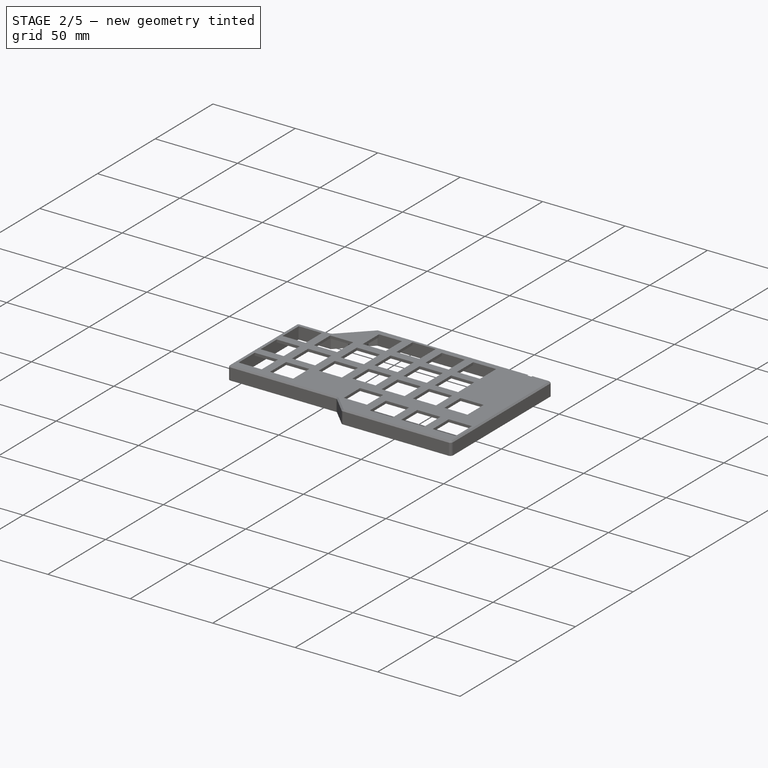
[diagram: stage 2 of 5 — iso view after this stage's code; geometry added in this stage tinted green]
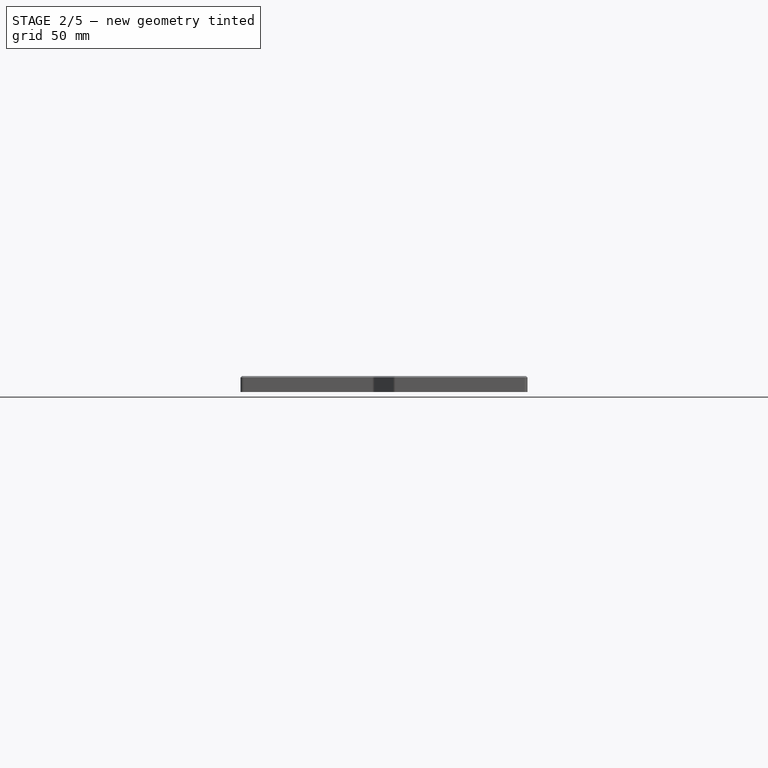
[diagram: stage 2 of 5 — front view after this stage's code; geometry added in this stage tinted green]
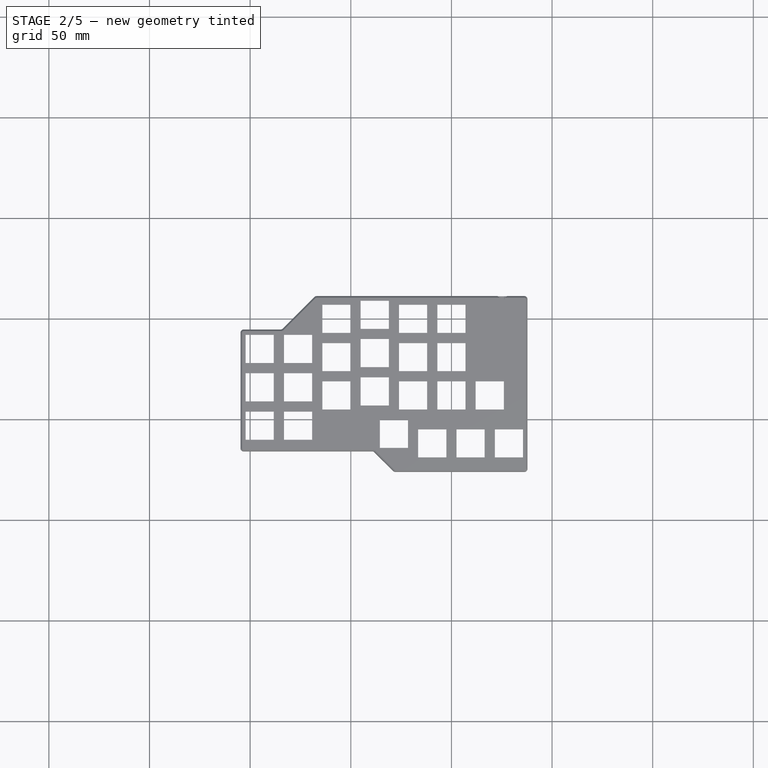
[diagram: stage 2 of 5 — top view after this stage's code; geometry added in this stage tinted green]
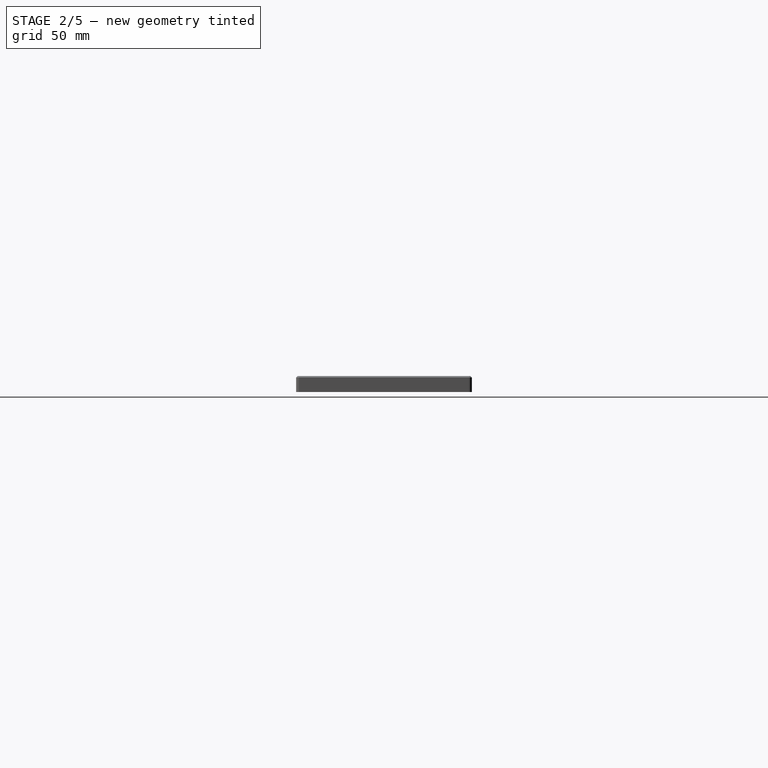
[diagram: stage 2 of 5 — right view after this stage's code; geometry added in this stage tinted green]
FEATURE [PartDesign::Fillet] Fillet
  Base = -> Pocket002 [Edge142,Edge143,Edge155,Edge153,Edge146,Edge148,Edge149,Edge151]
  BaseFeature = -> Pocket002
  Radius = 1.6
FEATURE [PartDesign::Chamfer] Chamfer001
  Base = -> Fillet [Edge27,Edge30,Edge34,Edge39,Edge42,Edge47,Edge51,Edge54,Edge56,Edge52,Edge49,Edge44,Edge41,Edge36,Edge33,Edge29]
  BaseFeature = -> Fillet
  Size = 0.8
FEATURE [PartDesign::FeatureBase] Clone
  BaseFeature = -> Chamfer001
FEATURE [Sketcher::SketchObject] Sketch013
  MapMode = 5
  Placement = pos=(0,0,0) rot=(1,0,0;1.5708rad)
  Support = -> [XZ_Plane002]
  sketch-geometry (5):
    g0: Circle [constr] CenterX=25.3 CenterY=5.15 CenterZ=0 NormalX=0 NormalY=0 NormalZ=1 AngleXU=0 Radius=3.1
    g1: ArcOfCircle CenterX=25.3 CenterY=5.15 CenterZ=0 NormalX=0 NormalY=0 NormalZ=1 AngleXU=0 Radius=3.1 StartAngle=5.23598 EndAngle=10.472
    g2: LineSegment StartX=23.75 StartY=2.46532 StartZ=0 EndX=24.4694 EndY=2.05 EndZ=0
    g3: LineSegment StartX=24.4694 StartY=2.05 StartZ=0 EndX=26.1306 EndY=2.05 EndZ=0
    g4: LineSegment StartX=26.1306 StartY=2.05 StartZ=0 EndX=26.85 EndY=2.46532 EndZ=0
  constraints (15):
    c: Radius(g0) = 3.1
    c: Coincident(g1,g0)
    c: PointOnObject(g1,g0)
    c: Coincident(g2,g1)
    c: Coincident(g3,g2)
    c: Horizontal(g3)
    c: Coincident(g4,g3)
    c: Coincident(g4,g1)
    c: Tangent(g4,g0)
    c: Tangent(g3,g0)
    c: Tangent(g2,g0)
    c: Equal(g2,g4)
    c: Angle(g4,g3) = 2.61799
    c: DistanceX(g-1,g1) = 25.3
    c: DistanceY(g-1,g1) = 5.15
FEATURE [PartDesign::Pocket] Pocket006
  BaseFeature = -> Clone
  Length = 0
  Length2 = 100
  Profile = -> Sketch013
  Type = 1
FEATURE [Sketcher::SketchObject] Sketch014
  ExternalGeometry = -> [Pocket006]
  MapMode = 5
  Placement = pos=(0,0,0) rot=(0,0.707107,0.707107;3.14159rad)
  Support = -> [Pocket006]
  sketch-geometry (4):
    g0: ArcOfCircle CenterX=-25.3 CenterY=5.15 CenterZ=0 NormalX=0 NormalY=0 NormalZ=1 AngleXU=0 Radius=3.1 StartAngle=1.97516 EndAngle=2.72655
    g1: ArcOfCircle CenterX=-25.3 CenterY=5.15 CenterZ=0 NormalX=0 NormalY=0 NormalZ=1 AngleXU=0 Radius=3.1 StartAngle=0.415039 EndAngle=1.16644
    g2: LineSegment StartX=-26.5196 StartY=8 StartZ=0 EndX=-24.0804 EndY=8 EndZ=0
    g3: LineSegment StartX=-28.1368 StartY=6.4 StartZ=0 EndX=-22.4632 EndY=6.4 EndZ=0
  constraints (9):
    c: Coincident(g0,g-4)
    c: Coincident(g0,g-3)
    c: Coincident(g1,g0)
    c: Coincident(g1,g-4)
    c: Coincident(g1,g-3)
    c: Coincident(g2,g0)
    c: Coincident(g2,g1)
    c: Coincident(g3,g0)
    c: Coincident(g3,g1)
FEATURE [PartDesign::Pad] Pad006
  BaseFeature = -> Pocket006
  Length = 10
  Length2 = 100
  Offset = -1.6
  Profile = -> Sketch014
  Type = 3
  UpToFace = -> Pocket006 [Face21]
FEATURE [PartDesign::Pocket] Pocket007
  BaseFeature = -> Pad006
  Length = 1.2
  Length2 = 100
  Profile = -> Sketch015
  Type = 0
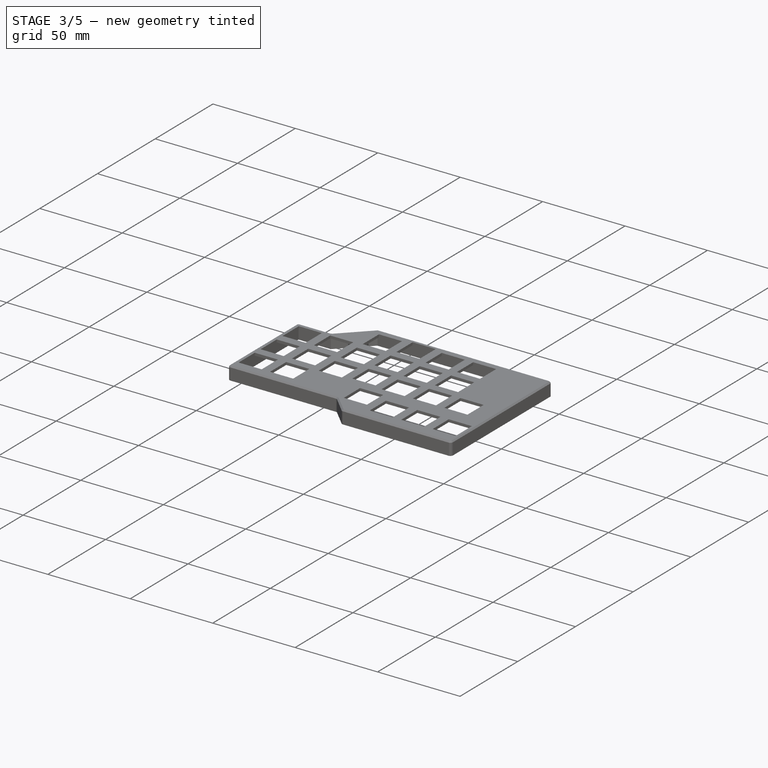
[diagram: stage 3 of 5 — iso view after this stage's code; geometry added in this stage tinted green]
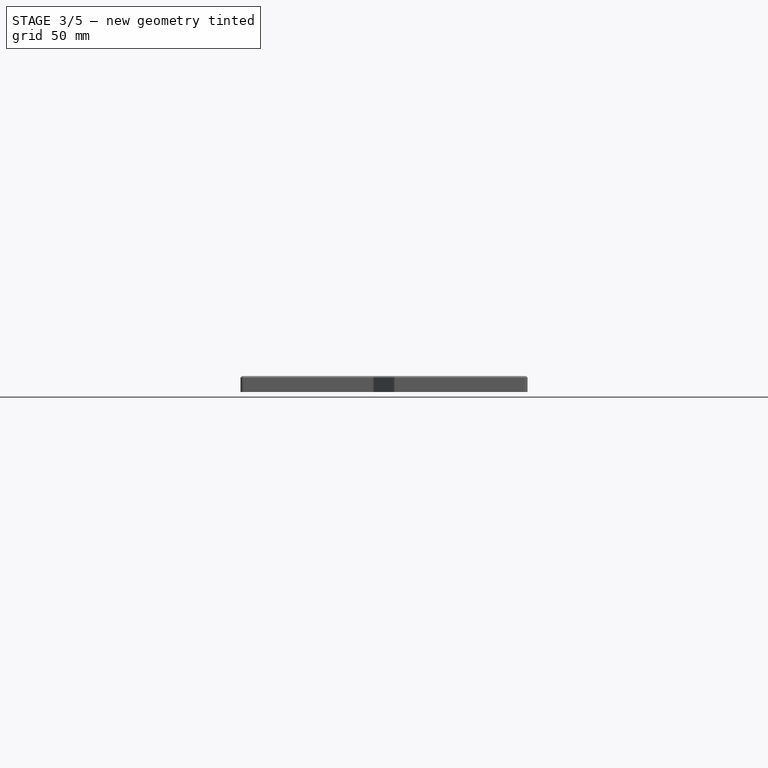
[diagram: stage 3 of 5 — front view after this stage's code; geometry added in this stage tinted green]
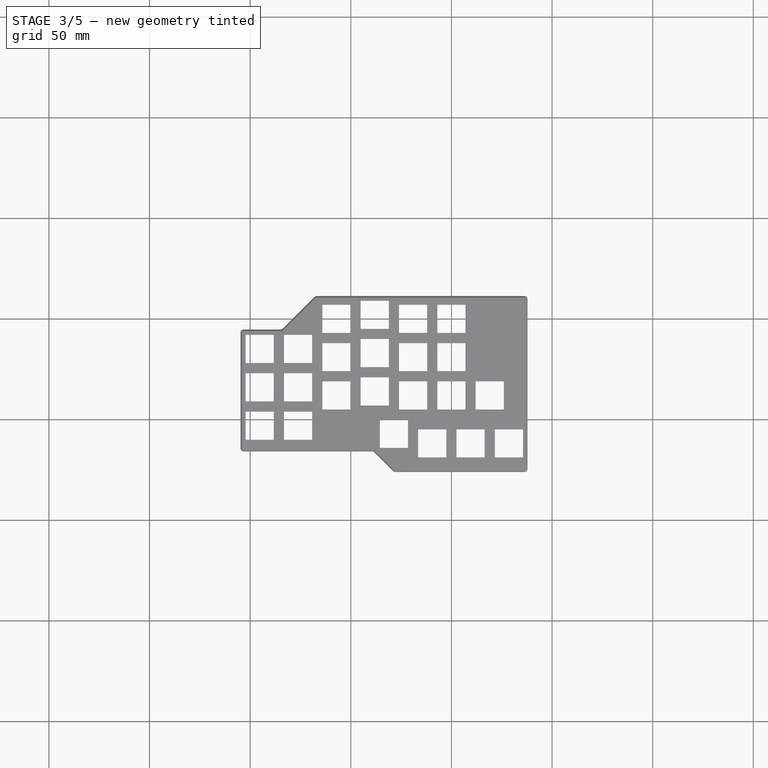
[diagram: stage 3 of 5 — top view after this stage's code; geometry added in this stage tinted green]
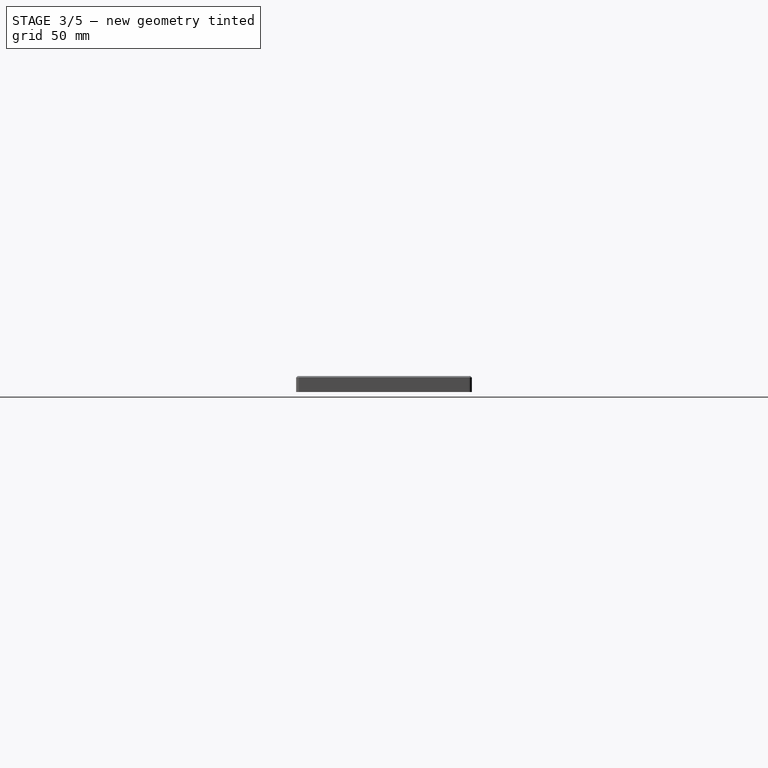
[diagram: stage 3 of 5 — right view after this stage's code; geometry added in this stage tinted green]
FEATURE [PartDesign::Body] Body001  label="left bottom"
  Group = -> [Sketch005,Pad002,Thickness001,Sketch007,Pad003,Sketch008,Pad004,Sketch009,Pocket003,Sketch010,Pocket004,Chamfer,Fillet001,Chamfer002]
  Origin = -> Origin001
  Tip = -> Chamfer002
FEATURE [Sketcher::SketchObject] Sketch011
  MapMode = 5
  Placement = pos=(0,0,0) rot=(1,0,0;1.5708rad)
  Support = -> [XZ_Plane]
  sketch-geometry (23):
    g0: LineSegment StartX=13 StartY=6.3 StartZ=0 EndX=20 EndY=6.3 EndZ=0
    g1: LineSegment [constr] StartX=20 StartY=6.3 StartZ=0 EndX=20 EndY=2.9 EndZ=0
    g2: LineSegment StartX=20 StartY=2.9 StartZ=0 EndX=13 EndY=2.9 EndZ=0
    g3: LineSegment [constr] StartX=13 StartY=2.9 StartZ=0 EndX=13 EndY=6.3 EndZ=0
    g4: ArcOfCircle CenterX=13 CenterY=5.2 CenterZ=0 NormalX=0 NormalY=0 NormalZ=1 AngleXU=0 Radius=1.1 StartAngle=1.5708 EndAngle=3.14159
    g5: LineSegment StartX=11.9 StartY=5.2 StartZ=0 EndX=11.9 EndY=4 EndZ=0
    g6: ArcOfCircle CenterX=20 CenterY=5.2 CenterZ=0 NormalX=0 NormalY=0 NormalZ=1 AngleXU=0 Radius=1.1 StartAngle=0 EndAngle=1.5708
    g7: LineSegment StartX=21.1 StartY=4 StartZ=0 EndX=21.1 EndY=5.2 EndZ=0
    g8: LineSegment [constr] StartX=13 StartY=6.3 StartZ=0 EndX=20 EndY=2.9 EndZ=0
    g9: LineSegment [constr] StartX=13 StartY=2.9 StartZ=0 EndX=20 EndY=6.3 EndZ=0
    g10: GeomPoint X=16.5 Y=4.6 Z=0
    g11: Circle [constr] CenterX=30.6 CenterY=5.15 CenterZ=0 NormalX=0 NormalY=0 NormalZ=1 AngleXU=0 Radius=3.1
    g12: ArcOfCircle CenterX=30.6 CenterY=5.15 CenterZ=0 NormalX=0 NormalY=0 NormalZ=1 AngleXU=0 Radius=3.1 StartAngle=5.23599 EndAngle=10.472
    g13: LineSegment StartX=29.05 StartY=2.46532 StartZ=0 EndX=29.7694 EndY=2.05 EndZ=0
    g14: LineSegment StartX=29.7694 StartY=2.05 StartZ=0 EndX=31.4306 EndY=2.05 EndZ=0
    g15: LineSegment StartX=31.4306 StartY=2.05 StartZ=0 EndX=32.15 EndY=2.46532 EndZ=0
    g16: ArcOfCircle CenterX=13 CenterY=4 CenterZ=0 NormalX=0 NormalY=0 NormalZ=1 AngleXU=0 Radius=1.1 StartAngle=3.14159 EndAngle=4.18879
    g17: ArcOfCircle CenterX=20 CenterY=4 CenterZ=0 NormalX=0 NormalY=0 NormalZ=1 AngleXU=0 Radius=1.1 StartAngle=5.23599 EndAngle=6.28319
    g18: LineSegment StartX=20.55 StartY=3.04737 StartZ=0 EndX=20.2947 EndY=2.9 EndZ=0
    g19: LineSegment StartX=20.2947 StartY=2.9 StartZ=0 EndX=20 EndY=2.9 EndZ=0
    g20: LineSegment StartX=12.45 StartY=3.04737 StartZ=0 EndX=12.7053 EndY=2.9 EndZ=0
    g21: LineSegment StartX=12.7053 StartY=2.9 StartZ=0 EndX=13 EndY=2.9 EndZ=0
    g22: ArcOfCircle [constr] CenterX=20 CenterY=4 CenterZ=0 NormalX=0 NormalY=0 NormalZ=1 AngleXU=0 Radius=1.1 StartAngle=4.71239 EndAngle=5.23599
  constraints (61):
    c: Coincident(g0,g1)
    c: Coincident(g1,g2)
    c: Coincident(g2,g3)
    c: Coincident(g3,g0)
    c: Horizontal(g0)
    c: Horizontal(g2)
    c: Vertical(g1)
    c: Vertical(g3)
    c: PointOnObject(g4,g3)
    c: Coincident(g4,g0)
    c: Vertical(g5)
    c: Tangent(g5,g4) = -1.5708
    c: PointOnObject(g6,g1)
    c: Coincident(g6,g0)
    c: Vertical(g7)
    c: Tangent(g7,g6) = -1.5708
    c: Equal(g4,g6)
    c: DistanceX(g4,g6) = 9.2
    c: Radius(g4) = 1.1
    c: Distance(g1) = 3.4
    c: Coincident(g8,g0)
    c: Coincident(g8,g2)
    c: Coincident(g9,g2)
    c: Coincident(g9,g0)
    c: PointOnObject(g10,g9)
    c: PointOnObject(g10,g8)
    c: DistanceX(g-1,g10) = 16.5
    c: DistanceY(g-1,g2) = 2.9
    c: Radius(g11) = 3.1
    c: DistanceY(g2,g11) = 2.25
    c: DistanceX(g-1,g11) = 30.6
    c: Coincident(g12,g11)
    c: PointOnObject(g12,g11)
    c: Coincident(g13,g12)
    c: Tangent(g13,g11)
    c: Coincident(g14,g13)
    c: Horizontal(g14)
    c: Tangent(g14,g11)
    c: Coincident(g15,g14)
    c: Coincident(g15,g12)
    c: Tangent(g15,g11)
    c: Equal(g15,g13)
    c: Angle(g14,g13) = 2.61799
    c: PointOnObject(g16,g3)
    c: PointOnObject(g17,g1)
    c: Coincident(g19,g18)
    c: Coincident(g19,g2)
    c: Horizontal(g19)
    c: Tangent(g18,g17) = 1.5708
    c: Tangent(g17,g7) = -1.5708
    c: Coincident(g21,g20)
    c: Coincident(g21,g2)
    c: Horizontal(g21)
    c: Tangent(g20,g16) = -1.5708
    c: Angle(g18,g19) = 2.61799
    c: Coincident(g22,g17)
    c: Coincident(g22,g17)
    c: Coincident(g22,g2)
    c: Tangent(g16,g5) = -1.5708
    c: Equal(g20,g18)
    c: Angle(g21,g20) = 2.61799
FEATURE [PartDesign::Pocket] Pocket005
  BaseFeature = -> Chamfer001
  Length = 15
  Length2 = 3
  Profile = -> Sketch011
  Type = 1
FEATURE [Sketcher::SketchObject] Sketch012
  ExternalGeometry = -> [Pocket005]
  MapMode = 5
  Placement = pos=(0,0,0) rot=(0,0.707107,0.707107;3.14159rad)
  Support = -> [Pocket005]
  sketch-geometry (4):
    g0: ArcOfCircle CenterX=-30.6 CenterY=5.15 CenterZ=0 NormalX=0 NormalY=0 NormalZ=1 AngleXU=0 Radius=3.1 StartAngle=1.97516 EndAngle=2.72655
    g1: ArcOfCircle CenterX=-30.6 CenterY=5.15 CenterZ=0 NormalX=0 NormalY=0 NormalZ=1 AngleXU=0 Radius=3.1 StartAngle=0.415039 EndAngle=1.16644
    g2: LineSegment StartX=-33.4368 StartY=6.4 StartZ=0 EndX=-27.7632 EndY=6.4 EndZ=0
    g3: LineSegment StartX=-29.3804 StartY=8 StartZ=0 EndX=-31.8196 EndY=8 EndZ=0
  constraints (9):
    c: Coincident(g0,g-4)
    c: Coincident(g0,g-3)
    c: Coincident(g1,g0)
    c: Coincident(g1,g-4)
    c: Coincident(g1,g-3)
    c: Coincident(g2,g0)
    c: Coincident(g2,g1)
    c: Coincident(g3,g1)
    c: Coincident(g3,g0)
FEATURE [PartDesign::Pad] Pad005
  BaseFeature = -> Pocket005
  Length = 10
  Length2 = 100
  Offset = -1.6
  Profile = -> Sketch012
  Type = 3
  UpToFace = -> Pocket005 [Face21]
FEATURE [Sketcher::SketchObject] Sketch015
  ExternalGeometry = -> [Pad006]
  MapMode = 5
  Placement = pos=(0,0,6.4) rot=(1,0,0;3.14159rad)
  Support = -> [Pad006]
  sketch-geometry (9):
    g0: LineSegment StartX=21.8 StartY=3.8 StartZ=0 EndX=28.8 EndY=3.8 EndZ=0
    g1: LineSegment StartX=28.8 StartY=3.8 StartZ=0 EndX=28.8 EndY=-9.7 EndZ=0
    g2: LineSegment StartX=28.8 StartY=-9.7 StartZ=0 EndX=21.8 EndY=-9.7 EndZ=0
    g3: LineSegment StartX=21.8 StartY=-9.7 StartZ=0 EndX=21.8 EndY=3.8 EndZ=0
    g4: LineSegment [constr] StartX=21.8 StartY=3.8 StartZ=0 EndX=28.8 EndY=-9.7 EndZ=0
    g5: LineSegment [constr] StartX=28.8 StartY=3.8 StartZ=0 EndX=21.8 EndY=-9.7 EndZ=0
    g6: GeomPoint X=25.3 Y=-2.95 Z=0
    g7: LineSegment [constr] StartX=25.3 StartY=-2.95 StartZ=0 EndX=22.4632 EndY=-8.3 EndZ=0
    g8: LineSegment [constr] StartX=25.3 StartY=-2.95 StartZ=0 EndX=28.1368 EndY=-8.3 EndZ=0
  constraints (22):
    c: Coincident(g0,g1)
    c: Coincident(g1,g2)
    c: Coincident(g2,g3)
    c: Coincident(g3,g0)
    c: Horizontal(g0)
    c: Horizontal(g2)
    c: Vertical(g1)
    c: Vertical(g3)
    c: PointOnObject(g1,g-4)
    c: Coincident(g4,g0)
    c: Coincident(g4,g1)
    c: Coincident(g5,g0)
    c: Coincident(g5,g2)
    c: PointOnObject(g6,g4)
    c: PointOnObject(g6,g5)
    c: Coincident(g7,g6)
    c: Coincident(g7,g-3)
    c: Coincident(g8,g6)
    c: Coincident(g8,g-3)
    c: Equal(g7,g8)
    c: Distance(g0) = 7
    c: Distance(g1) = 13.5
FEATURE [Sketcher::SketchObject] Sketch016
  ExternalGeometry = -> [Pad005]
  MapMode = 5
  Placement = pos=(0,0,6.4) rot=(1,0,0;3.14159rad)
  Support = -> [Pad005]
  sketch-geometry (10):
    g0: LineSegment StartX=27.1 StartY=-9.7 StartZ=0 EndX=34.1 EndY=-9.7 EndZ=0
    g1: LineSegment StartX=34.1 StartY=-9.7 StartZ=0 EndX=34.1 EndY=3.8 EndZ=0
    g2: LineSegment StartX=34.1 StartY=3.8 StartZ=0 EndX=27.1 EndY=3.8 EndZ=0
    g3: LineSegment StartX=27.1 StartY=3.8 StartZ=0 EndX=27.1 EndY=-9.7 EndZ=0
    g4: LineSegment [constr] StartX=27.1 StartY=3.8 StartZ=0 EndX=34.1 EndY=-9.7 EndZ=0
    g5: LineSegment [constr] StartX=27.1 StartY=-9.7 StartZ=0 EndX=34.1 EndY=3.8 EndZ=0
    g6: GeomPoint X=30.6 Y=-2.95 Z=0
    g7: GeomPoint X=30.6 Y=-2.95 Z=0
    g8: LineSegment [constr] StartX=27.7632 StartY=-9.5 StartZ=0 EndX=30.6 EndY=-2.95 EndZ=0
    g9: LineSegment [constr] StartX=30.6 StartY=-2.95 StartZ=0 EndX=33.4368 EndY=-9.5 EndZ=0
  constraints (23):
    c: Coincident(g0,g1)
    c: Coincident(g1,g2)
    c: Coincident(g2,g3)
    c: Coincident(g3,g0)
    c: Horizontal(g0)
    c: Horizontal(g2)
    c: Vertical(g1)
    c: Vertical(g3)
    c: PointOnObject(g0,g-3)
    c: Coincident(g4,g2)
    c: Coincident(g4,g0)
    c: Coincident(g5,g0)
    c: Coincident(g5,g1)
    c: PointOnObject(g6,g4)
    c: Coincident(g7,g6)
    c: PointOnObject(g6,g5)
    c: Coincident(g8,g-4)
    c: Coincident(g8,g6)
    c: Coincident(g9,g6)
    c: Coincident(g9,g-4)
    c: Equal(g9,g8)
    c: Distance(g2) = 7
    c: Distance(g3) = 13.5
FEATURE [PartDesign::Pocket] Pocket008
  BaseFeature = -> Pad005
  Length = 1.2
  Length2 = 100
  Profile = -> Sketch016
  Type = 0
FEATURE [PartDesign::Chamfer] Chamfer003
  Base = -> Pocket008 [Edge461]
  BaseFeature = -> Pocket008
  Size = 1.2
FEATURE [PartDesign::Chamfer] Chamfer004
  Base = -> Pocket008 [Edge480]
  BaseFeature = -> Pocket008
  Size = 1.199
FEATURE [PartDesign::Body] Body  label="left top"
  Group = -> [Sketch,Pad,Thickness,Sketch001,Pad001,Sketch002,Pocket,Sketch003,Pocket001,Sketch004,Pocket002,Fillet,Chamfer001,Sketch011,Pocket005,Sketch012,Pad005,Sketch016,Pocket008,Chamfer003,Chamfer004]
  Origin = -> Origin
  Tip = -> Chamfer004
FEATURE [PartDesign::Chamfer] Chamfer005
  Base = -> Pocket007 [Edge444]
  BaseFeature = -> Pocket007
  Size = 1.199
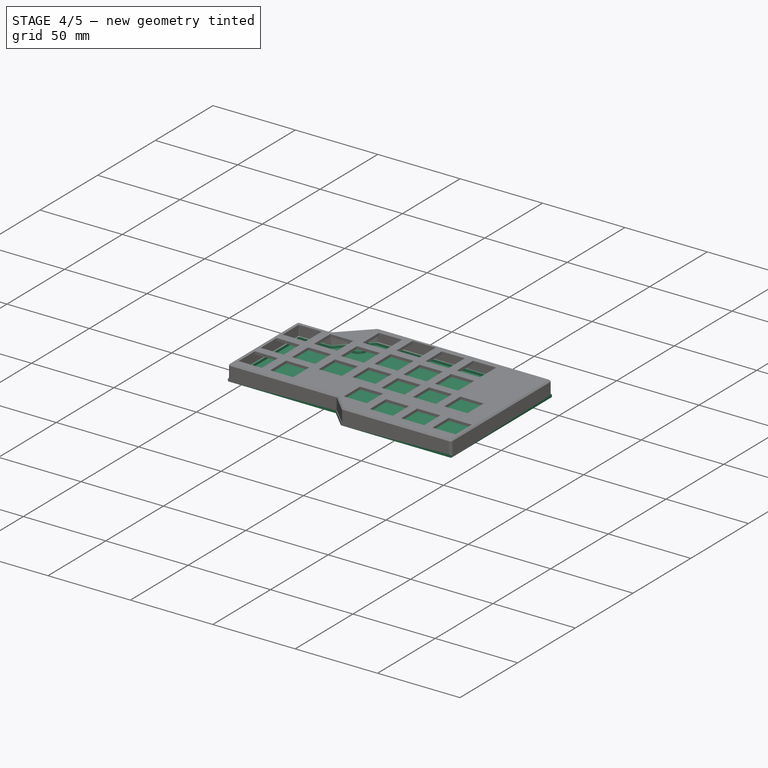
[diagram: stage 4 of 5 — iso view after this stage's code; geometry added in this stage tinted green]
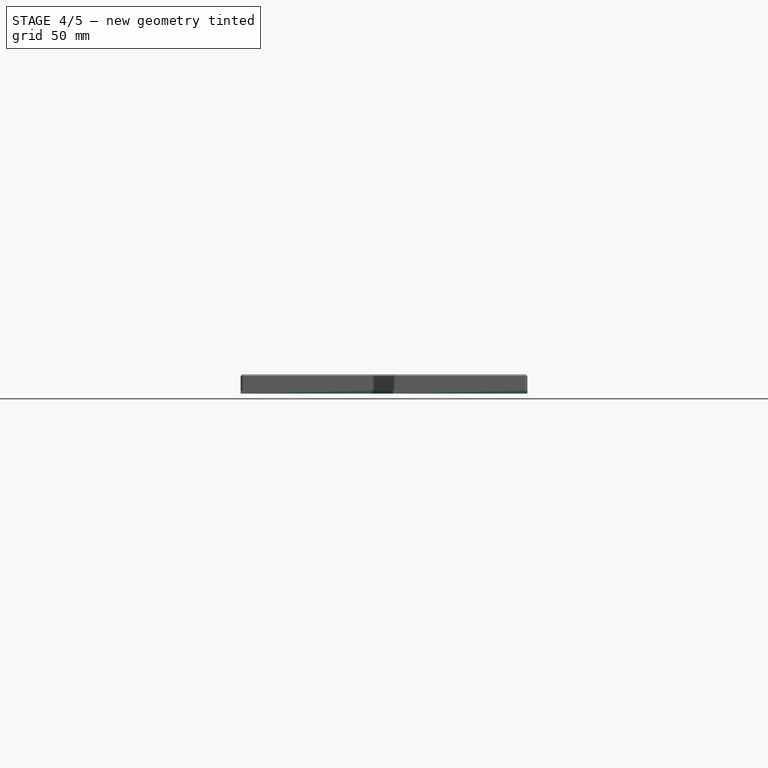
[diagram: stage 4 of 5 — front view after this stage's code; geometry added in this stage tinted green]
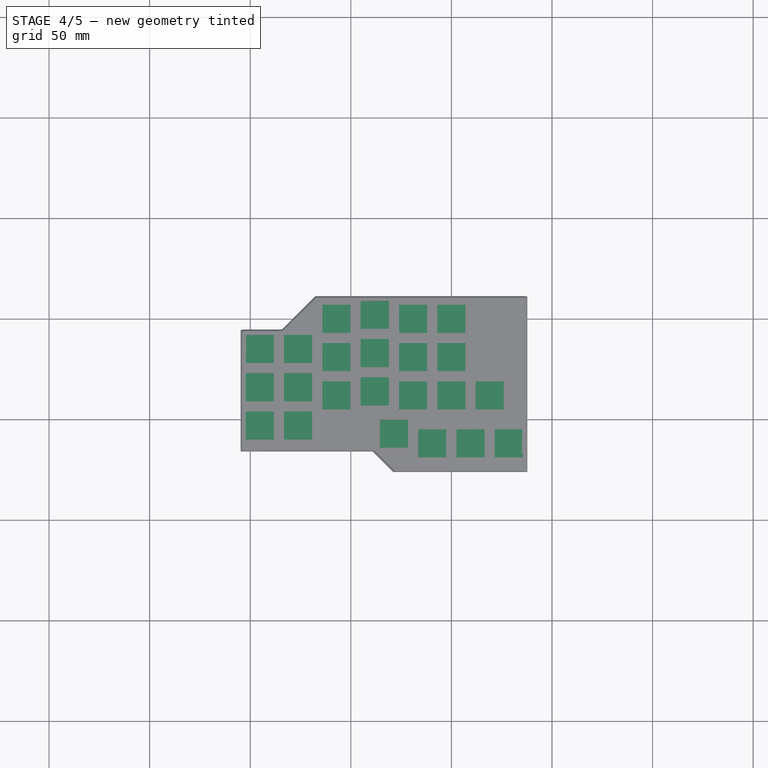
[diagram: stage 4 of 5 — top view after this stage's code; geometry added in this stage tinted green]
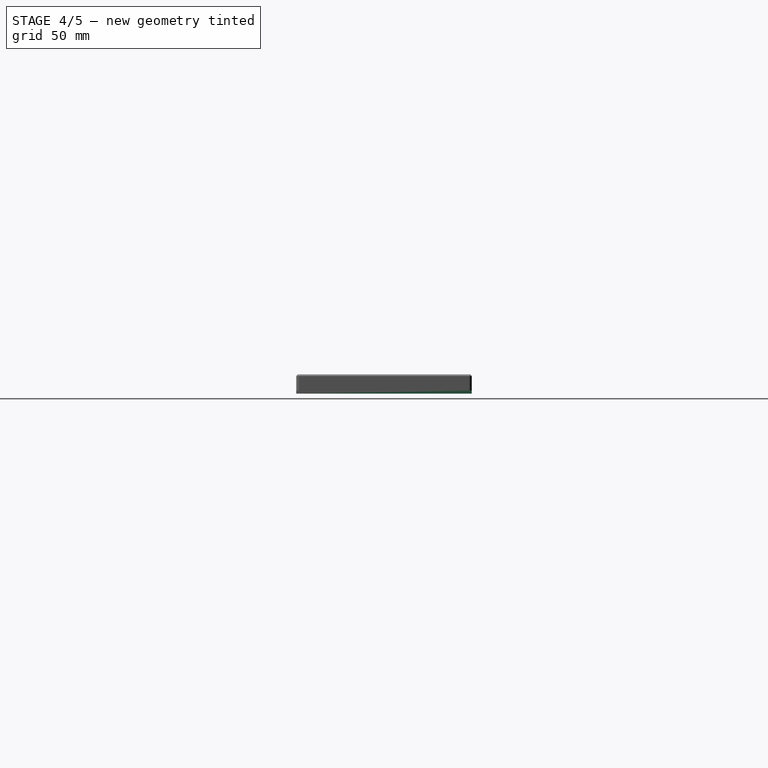
[diagram: stage 4 of 5 — right view after this stage's code; geometry added in this stage tinted green]
FEATURE [Sketcher::SketchObject] Sketch005
  MapMode = 5
  Support = -> [XY_Plane001]
  expr: Constraints[79] = Sketch.Constraints.tolerance
  expr: Constraints[71] = Sketch.Constraints[71]
  expr: Constraints[63] = Sketch.Constraints[63]
  expr: Constraints[68] = Sketch.Constraints[68]
  expr: Constraints[67] = Sketch.Constraints[67]
  expr: Constraints[65] = Sketch.Constraints[65]
  expr: Constraints.tolerance = Sketch.Constraints[62]
  expr: Constraints[66] = Sketch.Constraints[66]
  expr: Constraints[31] = Sketch.Constraints[31]
  expr: Constraints[30] = Sketch.Constraints[30]
  expr: Constraints[28] = Sketch.Constraints[28]
  expr: Constraints[70] = Sketch.Constraints[70]
  expr: Constraints[27] = Sketch.Constraints[27]
  expr: Constraints[23] = Sketch.Constraints[23]
  expr: Constraints[29] = Sketch.Constraints[29]
  expr: Constraints[4] = Sketch.Constraints[4]
  expr: Constraints[32] = Sketch.Constraints[32]
  expr: Constraints[26] = Sketch.Constraints[26]
  expr: Constraints[3] = Sketch.Constraints[3]
  expr: Constraints[2] = Sketch.Constraints[2]
  sketch-geometry (28):
    g0: LineSegment StartX=36 StartY=9.5 StartZ=0 EndX=-66.9 EndY=9.5 EndZ=0
    g1: LineSegment StartX=-66.9 StartY=9.5 StartZ=0 EndX=-83.5 EndY=-7.1 EndZ=0
    g2: LineSegment StartX=-83.5 StartY=-7.1 StartZ=0 EndX=-100 EndY=-7.1 EndZ=0
    g3: LineSegment [constr] StartX=-100 StartY=-7.1 StartZ=0 EndX=-103 EndY=-10.1 EndZ=0
    g4: LineSegment StartX=-103 StartY=-10.1 StartZ=0 EndX=-103 EndY=-61 EndZ=0
    g5: LineSegment [constr] StartX=-103 StartY=-61 StartZ=0 EndX=-100 EndY=-64 EndZ=0
    g6: LineSegment StartX=-100 StartY=-64 StartZ=0 EndX=-38.5 EndY=-64 EndZ=0
    g7: LineSegment StartX=-38.5 StartY=-64 StartZ=0 EndX=-32.5 EndY=-70 EndZ=0
    g8: LineSegment [constr] StartX=-32.5 StartY=-70 StartZ=0 EndX=33 EndY=-70 EndZ=0
    g9: LineSegment [constr] StartX=33 StartY=-70 StartZ=0 EndX=36 EndY=-67 EndZ=0
    g10: LineSegment StartX=36 StartY=-67 StartZ=0 EndX=36 EndY=9.5 EndZ=0
    g11: LineSegment StartX=-103 StartY=-10.1 StartZ=0 EndX=-103 EndY=-7.1 EndZ=0
    g12: LineSegment StartX=-103 StartY=-7.1 StartZ=0 EndX=-100 EndY=-7.1 EndZ=0
    g13: LineSegment StartX=-103 StartY=-61 StartZ=0 EndX=-103 EndY=-64 EndZ=0
    g14: LineSegment StartX=-103 StartY=-64 StartZ=0 EndX=-100 EndY=-64 EndZ=0
    g15: LineSegment [constr] StartX=33 StartY=-70 StartZ=0 EndX=36 EndY=-70 EndZ=0
    g16: LineSegment StartX=36 StartY=-70 StartZ=0 EndX=36 EndY=-67 EndZ=0
    g17: LineSegment [constr] StartX=-103.2 StartY=-6.9 StartZ=0 EndX=-83.5828 EndY=-6.9 EndZ=0
    g18: LineSegment [constr] StartX=-83.5828 StartY=-6.9 StartZ=0 EndX=-66.9828 EndY=9.7 EndZ=0
    g19: LineSegment [constr] StartX=-66.9828 StartY=9.7 StartZ=0 EndX=36.2 EndY=9.7 EndZ=0
    g20: LineSegment [constr] StartX=36.2 StartY=9.7 StartZ=0 EndX=36.2 EndY=-74.4 EndZ=0
    g21: LineSegment [constr] StartX=36.2 StartY=-74.4 StartZ=0 EndX=-27.8172 EndY=-74.4 EndZ=0
    g22: LineSegment [constr] StartX=-27.8172 StartY=-74.4 StartZ=0 EndX=-38.0172 EndY=-64.2 EndZ=0
    g23: LineSegment [constr] StartX=-38.0172 StartY=-64.2 StartZ=0 EndX=-103.2 EndY=-64.2 EndZ=0
    g24: LineSegment [constr] StartX=-103.2 StartY=-64.2 StartZ=0 EndX=-103.2 EndY=-6.9 EndZ=0
    g25: LineSegment StartX=-32.5 StartY=-70 StartZ=0 EndX=-28.3 EndY=-74.2 EndZ=0
    g26: LineSegment StartX=-28.3 StartY=-74.2 StartZ=0 EndX=36 EndY=-74.2 EndZ=0
    g27: LineSegment StartX=36 StartY=-74.2 StartZ=0 EndX=36 EndY=-70 EndZ=0
  constraints (80):
    c: Horizontal(g0)
    c: Coincident(g1,g0)
    c: Distance(g0) = 102.9
    c: Angle(g1,g0) = 2.35619
    c: DistanceX(g1,g0) = 16.6
    c: Coincident(g2,g1)
    c: Horizontal(g2)
    c: Coincident(g3,g2)
    c: Coincident(g4,g3)
    c: Vertical(g4)
    c: Coincident(g5,g4)
    c: Coincident(g6,g5)
    c: Horizontal(g6)
    c: Coincident(g7,g6)
    c: Coincident(g8,g7)
    c: Horizontal(g8)
    c: Coincident(g9,g8)
    c: Coincident(g10,g9)
    c: Coincident(g10,g0)
    c: Vertical(g10)
    c: Parallel(g1,g3)
    c: Parallel(g1,g9)
    c: Parallel(g7,g5)
    c: DistanceX(g3,g2) = 3
    c: Equal(g3,g5)
    c: Equal(g5,g9)
    c: Distance(g2) = 16.5
    c: Distance(g8) = 65.5
    c: Angle(g5,g4) = 2.35619
    c: DistanceX(g6,g7) = 6
    c: Distance(g10) = 76.5
    c: Distance(g-1,g10) = 36
    c: Distance(g-1,g0) = 9.5
    c: Coincident(g11,g4)
    c: Vertical(g11)
    c: Coincident(g12,g11)
    c: Coincident(g12,g2)
    c: Horizontal(g12)
    c: Coincident(g13,g4)
    c: Vertical(g13)
    c: Coincident(g14,g13)
    c: Coincident(g14,g6)
    c: Horizontal(g14)
    c: Coincident(g15,g8)
    c: Horizontal(g15)
    c: Coincident(g16,g15)
    c: Coincident(g16,g10)
    c: Vertical(g16)
    c: Horizontal(g17)
    c: Coincident(g18,g17)
    c: Coincident(g19,g18)
    c: Horizontal(g19)
    c: Coincident(g20,g19)
    c: Vertical(g20)
    c: Coincident(g21,g20)
    c: Horizontal(g21)
    c: Coincident(g22,g21)
    c: Coincident(g23,g22)
    c: Horizontal(g23)
    c: Coincident(g24,g23)
    c: Coincident(g24,g17)
    c: Vertical(g24)
    c: Distance(g11,g24) = 0.2  'tolerance'
    c: Distance(g13,g23) = 0.2
    c: Parallel(g22,g7)
    c: Distance(g7,g22) = 0.2
    c: Distance(g15,g20) = 0.2
    c: Distance(g0,g19) = 0.2
    c: Distance(g11,g17) = 0.2
    c: Parallel(g18,g1)
    c: Distance(g18,g1) = 0.2
    c: Distance(g15,g21) = 4.4
    c: Coincident(g25,g7)
    c: Coincident(g26,g25)
    c: Horizontal(g26)
    c: Coincident(g27,g26)
    c: Coincident(g27,g16)
    c: Parallel(g7,g25)
    c: Vertical(g27)
    c: DistanceY(g21,g25) = 0.2
FEATURE [PartDesign::Pad] Pad002
  Length = 1.4
  Length2 = 100
  Profile = -> Sketch005
  Type = 0
FEATURE [PartDesign::Thickness] Thickness001
  Base = -> Pad002 [Face17,Face16]
  BaseFeature = -> Pad002
  Join = 1
  Mode = 0
  Reversed = true
  Value = 1
FEATURE [Sketcher::SketchObject] Sketch007
  ExternalGeometry = -> [Sketch005]
  MapMode = 5
  Support = -> [XY_Plane001]
  expr: Constraints[21] = Sketch007.Constraints.offset
  expr: Constraints[20] = Sketch007.Constraints.offset
  expr: Constraints[23] = Sketch007.Constraints.offset
  expr: Constraints[19] = Sketch007.Constraints.offset
  expr: Constraints[18] = Sketch007.Constraints.offset
  expr: Constraints[22] = Sketch007.Constraints.offset
  expr: Constraints[17] = Sketch007.Constraints.offset
  expr: Constraints.offset = 1.6mm + Sketch.Constraints.tolerance
  sketch-geometry (8):
    g0: LineSegment StartX=-104.8 StartY=-5.3 StartZ=0 EndX=-104.8 EndY=-65.8 EndZ=0
    g1: LineSegment StartX=-104.8 StartY=-65.8 StartZ=0 EndX=-39.2456 EndY=-65.8 EndZ=0
    g2: LineSegment StartX=-39.2456 StartY=-65.8 StartZ=0 EndX=-29.0456 EndY=-76 EndZ=0
    g3: LineSegment StartX=-29.0456 StartY=-76 StartZ=0 EndX=37.8 EndY=-76 EndZ=0
    g4: LineSegment StartX=37.8 StartY=-76 StartZ=0 EndX=37.8 EndY=11.3 EndZ=0
    g5: LineSegment StartX=37.8 StartY=11.3 StartZ=0 EndX=-67.6456 EndY=11.3 EndZ=0
    g6: LineSegment StartX=-67.6456 StartY=11.3 StartZ=0 EndX=-84.2456 EndY=-5.3 EndZ=0
    g7: LineSegment StartX=-84.2456 StartY=-5.3 StartZ=0 EndX=-104.8 EndY=-5.3 EndZ=0
  constraints (24):
    c: Vertical(g0)
    c: Coincident(g1,g0)
    c: Horizontal(g1)
    c: Coincident(g2,g1)
    c: Coincident(g3,g2)
    c: Horizontal(g3)
    c: Coincident(g4,g3)
    c: Vertical(g4)
    c: Coincident(g5,g4)
    c: Horizontal(g5)
    c: Coincident(g6,g5)
    c: Coincident(g7,g6)
    c: Coincident(g7,g0)
    c: Horizontal(g7)
    c: Parallel(g6,g-10)
    c: Parallel(g2,g-5)
    c: DistanceX(g0,g-13) = 1.8  'offset'
    c: DistanceX(g-9,g4) = 1.8
    c: DistanceY(g-13,g0) = 1.8
    c: DistanceY(g0,g-16) = 1.8
    c: DistanceY(g3,g-7) = 1.8
    c: Distance(g-6,g2) = 1.8
    c: DistanceY(g-9,g4) = 1.8
    c: Distance(g6,g-10) = 1.8
FEATURE [PartDesign::Pad] Pad003
  BaseFeature = -> Thickness001
  Length = 1.6
  Length2 = 100
  Profile = -> Sketch007
  Reversed = true
  Type = 0
FEATURE [Sketcher::SketchObject] Sketch008
  ExternalGeometry = -> [Sketch005]
  MapMode = 5
  Support = -> [XY_Plane001]
  expr: Constraints[8] = Sketch001.Constraints[8]
  expr: Constraints[7] = Sketch001.Constraints[7]
  expr: Constraints[6] = Sketch001.Constraints[6]
  expr: Constraints[4] = Sketch001.Constraints[4]
  expr: Constraints[3] = Sketch001.Constraints[3]
  expr: Constraints[5] = Sketch001.Constraints[5]
  expr: Constraints[2] = Sketch001.Constraints[2]
  sketch-geometry (14):
    g0: Circle [constr] CenterX=26.5 CenterY=24.1 CenterZ=0 NormalX=0 NormalY=0 NormalZ=1 AngleXU=0 Radius=5
    g1: Circle [constr] CenterX=-71 CenterY=1 CenterZ=0 NormalX=0 NormalY=0 NormalZ=1 AngleXU=0 Radius=5
    g2: Circle [constr] CenterX=-62 CenterY=60 CenterZ=0 NormalX=0 NormalY=0 NormalZ=1 AngleXU=0 Radius=5
    g3: ArcOfCircle CenterX=-71 CenterY=-1 CenterZ=0 NormalX=0 NormalY=0 NormalZ=1 AngleXU=0 Radius=5 StartAngle=2.79538 EndAngle=8.20019
    g4: LineSegment StartX=-75.7033 StartY=0.69667 StartZ=0 EndX=-72.6967 EndY=3.70333 EndZ=0
    g5: LineSegment [constr] StartX=-71 StartY=-1 StartZ=0 EndX=-71 EndY=0 EndZ=0
    g6: LineSegment [constr] StartX=-71 StartY=0 StartZ=0 EndX=-71 EndY=1 EndZ=0
    g7: LineSegment [constr] StartX=-62 StartY=60 StartZ=0 EndX=-62 EndY=0 EndZ=0
    g8: LineSegment [constr] StartX=-62 StartY=0 StartZ=0 EndX=-62 EndY=-60 EndZ=0
    g9: LineSegment [constr] StartX=26.5 StartY=24.1 StartZ=0 EndX=26.5 EndY=0 EndZ=0
    g10: LineSegment [constr] StartX=26.5 StartY=0 StartZ=0 EndX=26.5 EndY=-24.1 EndZ=0
    g11: Circle CenterX=26.5 CenterY=-24.1 CenterZ=0 NormalX=0 NormalY=0 NormalZ=1 AngleXU=0 Radius=5
    g12: ArcOfCircle CenterX=-62 CenterY=-60 CenterZ=0 NormalX=0 NormalY=0 NormalZ=1 AngleXU=0 Radius=5 StartAngle=5.35589 EndAngle=10.3521
    g13: LineSegment StartX=-65 StartY=-64 StartZ=0 EndX=-59 EndY=-64 EndZ=0
  constraints (41):
    c: Equal(g1,g0)
    c: Equal(g0,g2)
    c: Radius(g1) = 5
    c: DistanceX(g1,g-1) = 71
    c: DistanceY(g-1,g1) = 1
    c: DistanceY(g-1,g0) = 24.1
    c: DistanceX(g-1,g0) = 26.5
    c: DistanceX(g2,g-1) = 62
    c: DistanceY(g-1,g2) = 60
    c: PointOnObject(g3,g-3)
    c: PointOnObject(g3,g-3)
    c: Coincident(g4,g3)
    c: Coincident(g4,g3)
    c: Equal(g1,g3)
    c: Coincident(g5,g3)
    c: PointOnObject(g5,g-1)
    c: Vertical(g5)
    c: Coincident(g6,g5)
    c: Coincident(g6,g1)
    c: Vertical(g6)
    c: Equal(g5,g6)
    c: PointOnObject(g7,g-1)
    c: Vertical(g7)
    c: Coincident(g8,g7)
    c: Vertical(g8)
    c: Equal(g8,g7)
    c: Coincident(g7,g2)
    c: Coincident(g9,g0)
    c: PointOnObject(g9,g-1)
    c: Vertical(g9)
    c: Coincident(g10,g9)
    c: Vertical(g10)
    c: Equal(g10,g9)
    c: Coincident(g11,g10)
    c: Coincident(g12,g8)
    c: PointOnObject(g12,g-4)
    c: PointOnObject(g12,g-4)
    c: Equal(g12,g2)
    c: Equal(g11,g0)
    c: Coincident(g13,g12)
    c: Coincident(g13,g12)
FEATURE [PartDesign::Pad] Pad004
  BaseFeature = -> Pad003
  Length = 1.4
  Length2 = 100
  Profile = -> Sketch008
  Type = 0
FEATURE [Sketcher::SketchObject] Sketch009
  ExternalGeometry = -> [Sketch008]
  MapMode = 5
  Support = -> [XY_Plane001]
  sketch-geometry (3):
    g0: Circle CenterX=-71 CenterY=-1 CenterZ=0 NormalX=0 NormalY=0 NormalZ=1 AngleXU=0 Radius=1.7
    g1: Circle CenterX=-62 CenterY=-60 CenterZ=0 NormalX=0 NormalY=0 NormalZ=1 AngleXU=0 Radius=1.7
    g2: Circle CenterX=26.5 CenterY=-24.1 CenterZ=0 NormalX=0 NormalY=0 NormalZ=1 AngleXU=0 Radius=1.7
  constraints (6):
    c: Coincident(g0,g-3)
    c: Coincident(g1,g-4)
    c: Coincident(g2,g-5)
    c: Equal(g0,g1)
    c: Equal(g1,g2)
    c: Radius(g0) = 1.7
FEATURE [PartDesign::Pocket] Pocket003
  BaseFeature = -> Pad004
  Length = 5
  Length2 = 100
  Midplane = true
  Profile = -> Sketch009
  Type = 1
FEATURE [Sketcher::SketchObject] Sketch010
  ExternalGeometry = -> [Sketch005]
  MapMode = 5
  Support = -> [XY_Plane001]
  sketch-geometry (4):
    g0: LineSegment StartX=36 StartY=9.5 StartZ=0 EndX=11 EndY=9.5 EndZ=0
    g1: LineSegment StartX=11 StartY=9.5 StartZ=0 EndX=11 EndY=-19 EndZ=0
    g2: LineSegment StartX=11 StartY=-19 StartZ=0 EndX=36 EndY=-19 EndZ=0
    g3: LineSegment StartX=36 StartY=-19 StartZ=0 EndX=36 EndY=9.5 EndZ=0
  constraints (11):
    c: Coincident(g0,g1)
    c: Coincident(g1,g2)
    c: Coincident(g2,g3)
    c: Coincident(g3,g0)
    c: Horizontal(g0)
    c: Horizontal(g2)
    c: Vertical(g1)
    c: Vertical(g3)
    c: Coincident(g0,g-3)
    c: Distance(g0) = 25
    c: Distance(g3) = 28.5
FEATURE [PartDesign::Pocket] Pocket004
  BaseFeature = -> Pocket003
  Length = 5
  Length2 = 100
  Profile = -> Sketch010
  Reversed = true
  Type = 1
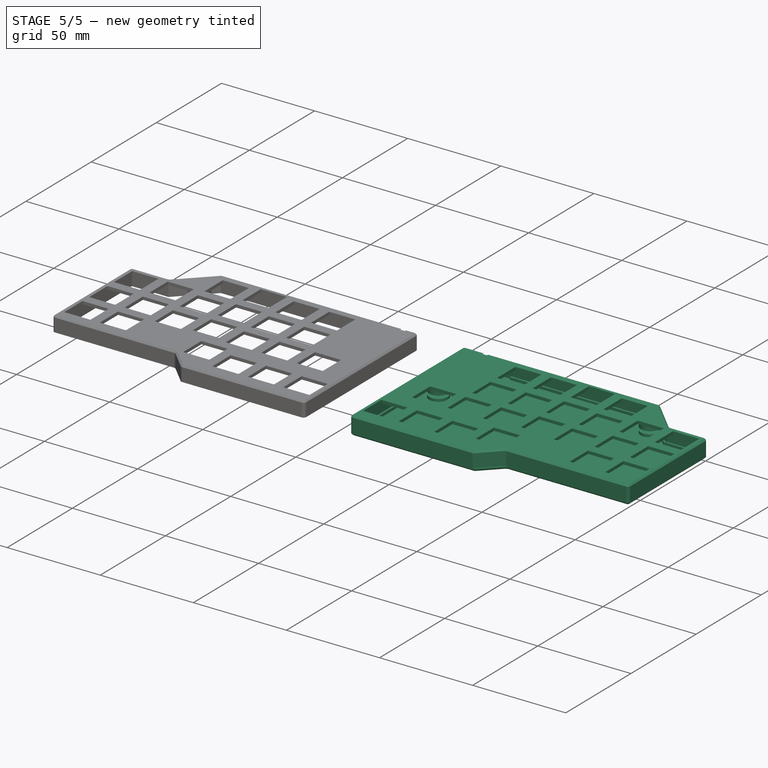
[diagram: stage 5 of 5 — iso view after this stage's code; geometry added in this stage tinted green]
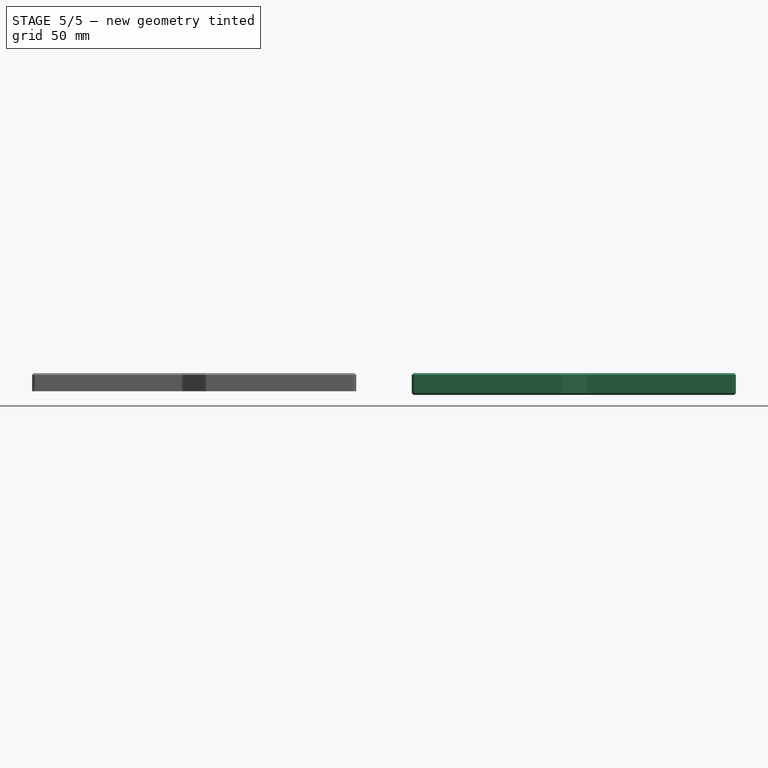
[diagram: stage 5 of 5 — front view after this stage's code; geometry added in this stage tinted green]
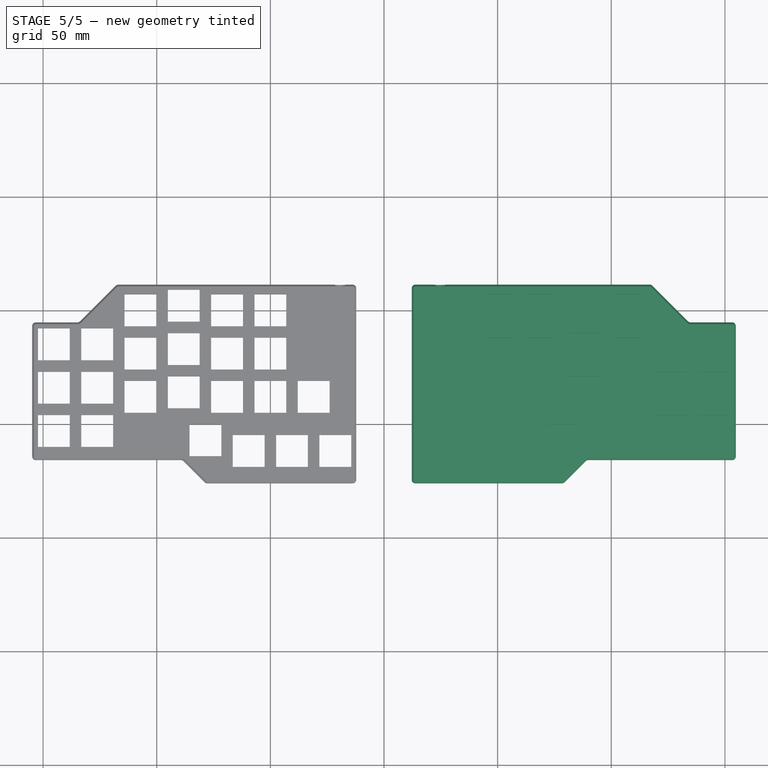
[diagram: stage 5 of 5 — top view after this stage's code; geometry added in this stage tinted green]
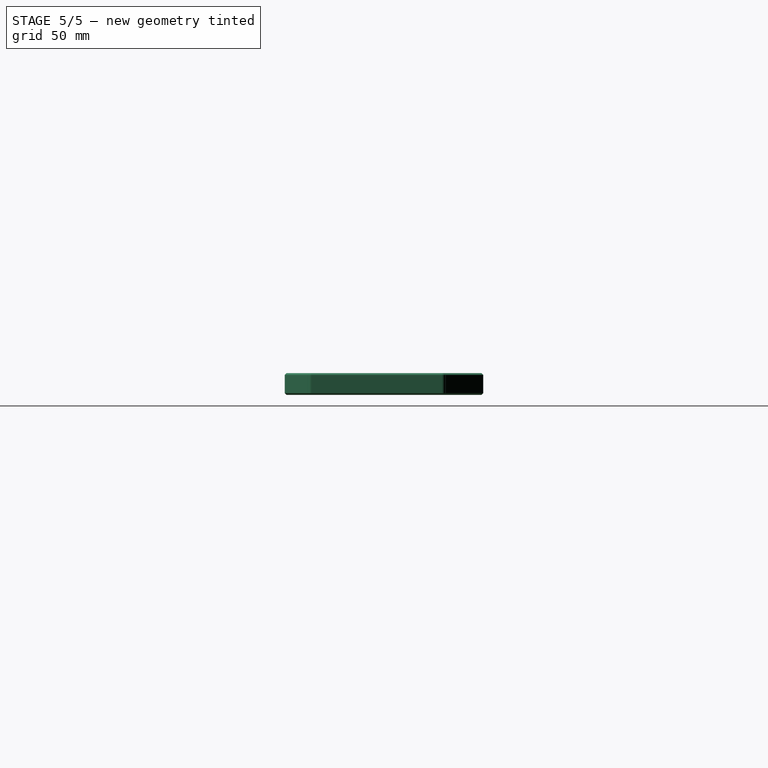
[diagram: stage 5 of 5 — right view after this stage's code; geometry added in this stage tinted green]
FEATURE [PartDesign::Chamfer] Chamfer
  Base = -> Pocket004 [Edge42,Edge43,Edge44]
  BaseFeature = -> Pocket004
  Size = 1.6
FEATURE [PartDesign::Fillet] Fillet001
  Base = -> Chamfer [Edge15,Edge14,Edge19,Edge23,Edge27,Edge25,Edge21,Edge17]
  BaseFeature = -> Chamfer
  Radius = 1.6
FEATURE [PartDesign::Chamfer] Chamfer002
  Base = -> Fillet001 [Edge1,Edge3,Edge5,Edge7,Edge9,Edge11,Edge13,Edge15,Edge16,Edge14,Edge12,Edge10,Edge8,Edge6,Edge4,Edge2]
  BaseFeature = -> Fillet001
  Size = 0.8
FEATURE [PartDesign::FeatureBase] Clone001
  BaseFeature = -> Chamfer002
FEATURE [PartDesign::Body] Body003
  BaseFeature = -> Chamfer002
  Group = -> [Clone001]
  Origin = -> Origin003
  Tip = -> Clone001
FEATURE [Part::Mirroring] Part__Mirroring001  label="right bottom"
  Base = (50,0,0)
  Normal = (1,0,0)
  Source = -> Body003
FEATURE [PartDesign::Body] Body002
  BaseFeature = -> Chamfer001
  Group = -> [Clone,Sketch013,Pocket006,Sketch014,Pad006,Sketch015,Pocket007,Chamfer005]
  Origin = -> Origin002
  Tip = -> Chamfer005
FEATURE [Part::Mirroring] Part__Mirroring  label="right top"
  Base = (50,0,0)
  Normal = (1,0,0)
  Source = -> Body002
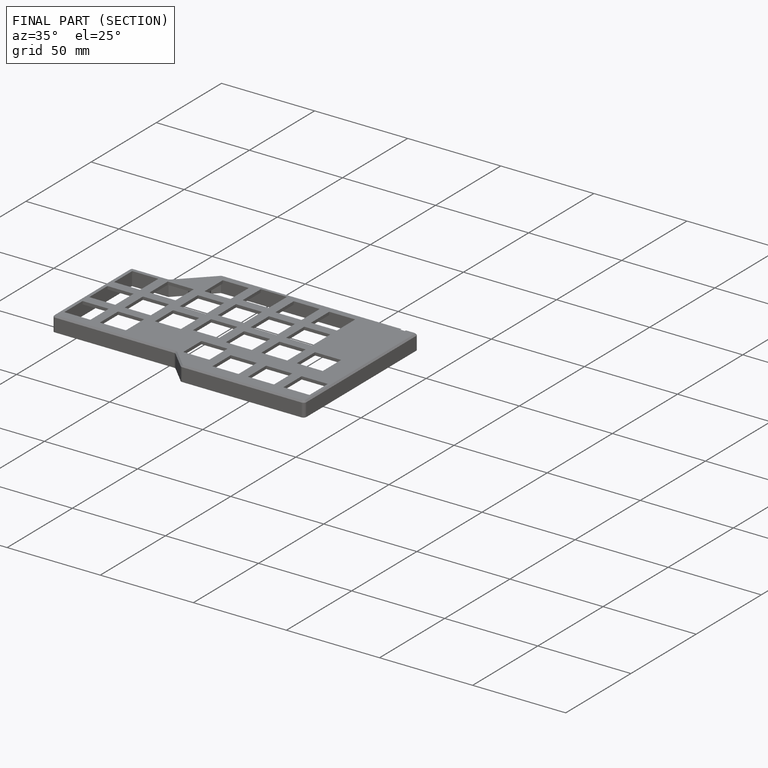
[diagram: finished part — half-section view (interior)]
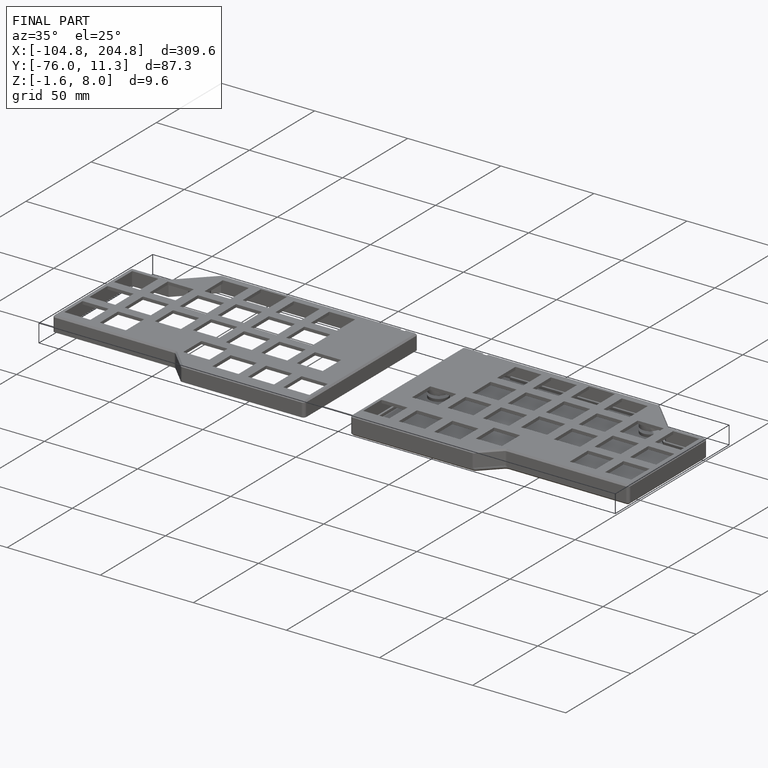
[diagram: finished part — iso view with bounding-box wireframe]
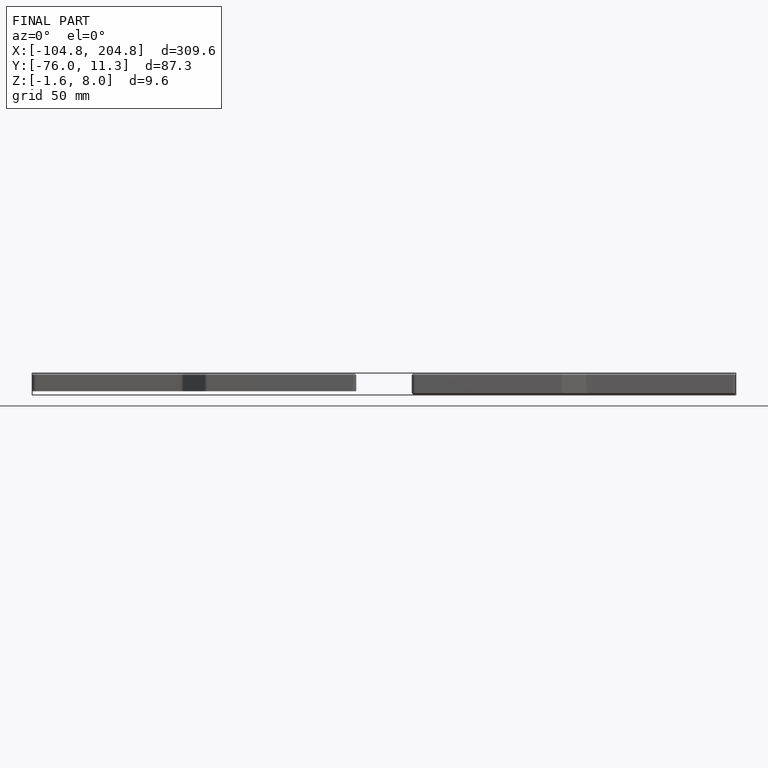
[diagram: finished part — front view with bounding-box wireframe]
